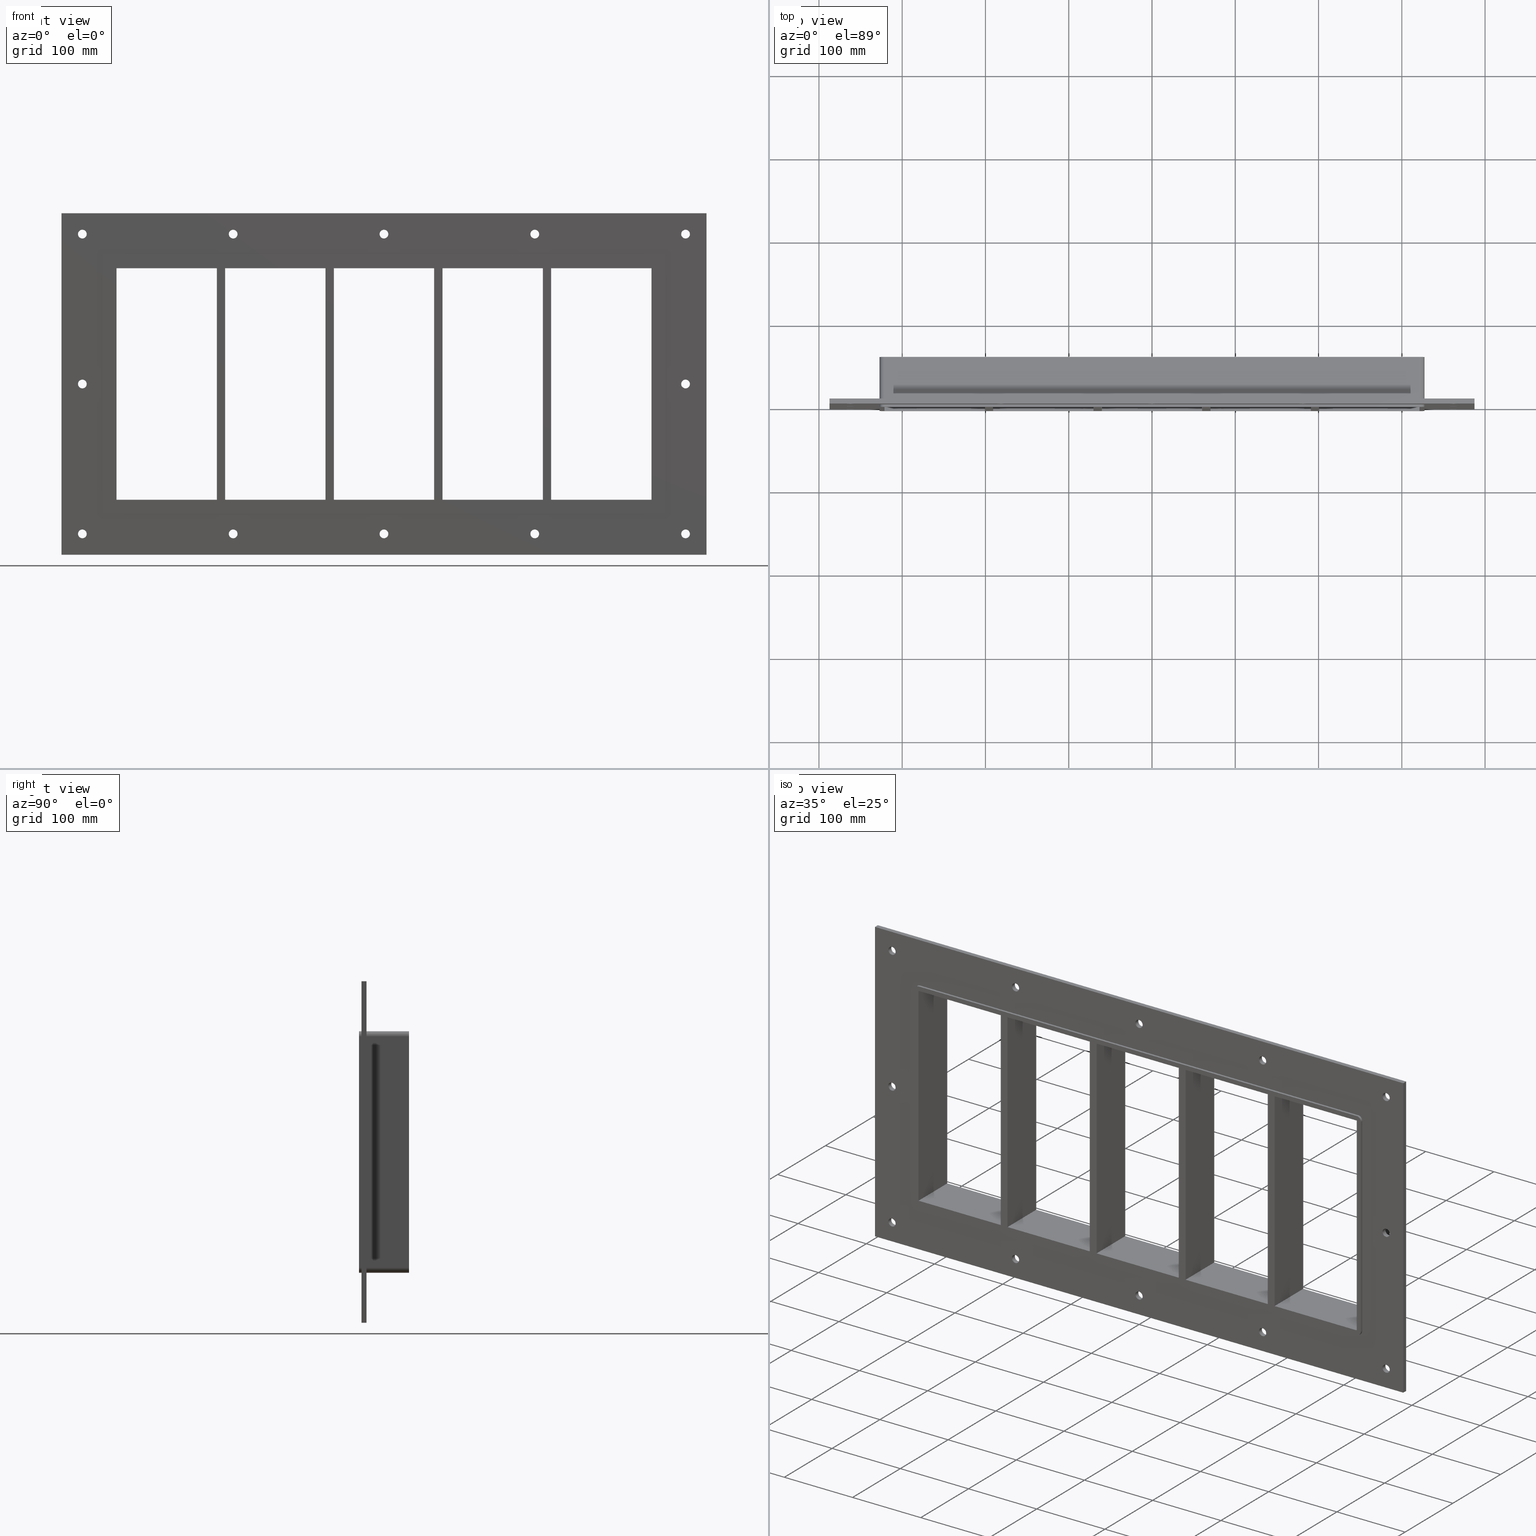
[diagram: canonical four-view strip — front | top / right | iso, engineering-drawing reading convention]
A machine part, canonical four-view strip (front | top / right | iso — engineering-drawing reading convention). The complete STEP part file that produces these views, byte-faithful:
ISO-10303-21;
HEADER;
/****************************************************************
 * Generated by software with PDElib inside                    *
 * PDElib Version v51a, created Wed 11/30/2011                  *
 * ITI Transcendata (http://www.transcendata.com/)              *
 ****************************************************************/
FILE_DESCRIPTION((''),'2;1');
FILE_NAME('L:\\roxtec-se\\Projects\\Ongoing_Projects\\12403 Transit Designer\\Product-data\\Product Data\\Transit designer Cad Generator\\CreatedFiles\\STEP\\GH8X5.stp','2015-01-13T14:16:52',(''),(''),'Autodesk Inventor 2013','Autodesk Inventor 2013','');
FILE_SCHEMA(('AUTOMOTIVE_DESIGN { 1 0 10303 214 1 1 1 1 }'));
ENDSEC;
DATA;
#5=APPLICATION_CONTEXT('automotive design');
#6=APPLICATION_PROTOCOL_DEFINITION('International Standard','automotive_design',2001,#5);
#7=PRODUCT_CONTEXT('',#5,'mechanical');
#8=PRODUCT('GH-ISO','GH-ISO',$,(#7));
#9=PRODUCT_RELATED_PRODUCT_CATEGORY('part',$,(#8));
#10=PRODUCT_DEFINITION_FORMATION('',$,#8);
#11=PRODUCT_DEFINITION_CONTEXT('part definition',#5,'design');
#12=PRODUCT_DEFINITION('',$,#10,#11);
#18=(NAMED_UNIT(*)PLANE_ANGLE_UNIT()SI_UNIT($,.RADIAN.));
#19=DIMENSIONAL_EXPONENTS(0.0,0.0,0.0,0.0,0.0,0.0,0.0);
#20=PLANE_ANGLE_MEASURE_WITH_UNIT(PLANE_ANGLE_MEASURE(0.0174532925),#18);
#24=(CONVERSION_BASED_UNIT('DEGREE',#20)NAMED_UNIT(#19)PLANE_ANGLE_UNIT());
#28=(NAMED_UNIT(*)SI_UNIT($,.STERADIAN.)SOLID_ANGLE_UNIT());
#32=(LENGTH_UNIT()NAMED_UNIT(*)SI_UNIT(.MILLI.,.METRE.));
#34=UNCERTAINTY_MEASURE_WITH_UNIT(LENGTH_MEASURE(0.01),#32,'DISTANCE_ACCURACY_VALUE','');
#36=(GEOMETRIC_REPRESENTATION_CONTEXT(3)GLOBAL_UNCERTAINTY_ASSIGNED_CONTEXT((#34))GLOBAL_UNIT_ASSIGNED_CONTEXT((#24,#28,#32))REPRESENTATION_CONTEXT('None','None'));
#37=AXIS2_PLACEMENT_3D('',#38,#39,#40);
#38=CARTESIAN_POINT('',(0.0,0.0,0.0));
#39=DIRECTION('',(0.0,0.0,1.0));
#40=DIRECTION('',(1.0,0.0,0.0));
#41=SHAPE_REPRESENTATION('',(#37),#36);
#42=PRODUCT_DEFINITION_SHAPE('','',#12);
#43=SHAPE_DEFINITION_REPRESENTATION(#42,#41);
#49=(NAMED_UNIT(*)PLANE_ANGLE_UNIT()SI_UNIT($,.RADIAN.));
#50=DIMENSIONAL_EXPONENTS(0.0,0.0,0.0,0.0,0.0,0.0,0.0);
#51=PLANE_ANGLE_MEASURE_WITH_UNIT(PLANE_ANGLE_MEASURE(0.0174532925),#49);
#55=(CONVERSION_BASED_UNIT('DEGREE',#51)NAMED_UNIT(#50)PLANE_ANGLE_UNIT());
#59=(NAMED_UNIT(*)SI_UNIT($,.STERADIAN.)SOLID_ANGLE_UNIT());
#63=(LENGTH_UNIT()NAMED_UNIT(*)SI_UNIT(.MILLI.,.METRE.));
#65=UNCERTAINTY_MEASURE_WITH_UNIT(LENGTH_MEASURE(0.000001),#63,'DISTANCE_ACCURACY_VALUE','');
#67=(GEOMETRIC_REPRESENTATION_CONTEXT(3)GLOBAL_UNCERTAINTY_ASSIGNED_CONTEXT((#65))GLOBAL_UNIT_ASSIGNED_CONTEXT((#55,#59,#63))REPRESENTATION_CONTEXT('','3D'));
#68=CARTESIAN_POINT('',(-362.25000000000011,878.37933149636444,-180.00000000000003));
#69=DIRECTION('',(0.0,-1.0,0.0));
#70=DIRECTION('',(1.0,0.0,0.0));
#71=AXIS2_PLACEMENT_3D('',#68,#69,#70);
#72=CYLINDRICAL_SURFACE('',#71,5.25);
#73=CARTESIAN_POINT('',(-367.50000000000006,5.999999999999943,-180.00000000000003));
#74=VERTEX_POINT('',#73);
#75=CARTESIAN_POINT('',(-362.25000000000011,5.999999999999943,-180.00000000000003));
#76=DIRECTION('',(0.0,-1.0,0.0));
#77=DIRECTION('',(1.0,0.0,0.0));
#78=AXIS2_PLACEMENT_3D('',#75,#76,#77);
#79=CIRCLE('',#78,5.25);
#80=EDGE_CURVE('',#74,#74,#79,.T.);
#81=ORIENTED_EDGE('',*,*,#80,.F.);
#82=EDGE_LOOP('',(#81));
#83=FACE_OUTER_BOUND('',#82,.T.);
#84=CARTESIAN_POINT('',(-357.00000000000011,0.0,-180.00000000000003));
#85=VERTEX_POINT('',#84);
#86=CARTESIAN_POINT('',(-362.25000000000011,0.0,-180.00000000000003));
#87=DIRECTION('',(0.0,1.0,0.0));
#88=DIRECTION('',(1.0,0.0,0.0));
#89=AXIS2_PLACEMENT_3D('',#86,#87,#88);
#90=CIRCLE('',#89,5.25);
#91=EDGE_CURVE('',#85,#85,#90,.T.);
#92=ORIENTED_EDGE('',*,*,#91,.F.);
#93=EDGE_LOOP('',(#92));
#94=FACE_BOUND('',#93,.T.);
#95=ADVANCED_FACE('',(#83,#94),#72,.F.);
#96=CARTESIAN_POINT('',(362.14999999999986,878.37933149636444,-3.552714E-014));
#97=DIRECTION('',(0.0,-1.0,0.0));
#98=DIRECTION('',(1.0,0.0,0.0));
#99=AXIS2_PLACEMENT_3D('',#96,#97,#98);
#100=CYLINDRICAL_SURFACE('',#99,5.25);
#101=CARTESIAN_POINT('',(356.89999999999992,5.999999999999943,-3.552714E-014));
#102=VERTEX_POINT('',#101);
#103=CARTESIAN_POINT('',(362.14999999999986,5.999999999999943,-3.552714E-014));
#104=DIRECTION('',(0.0,-1.0,0.0));
#105=DIRECTION('',(1.0,0.0,0.0));
#106=AXIS2_PLACEMENT_3D('',#103,#104,#105);
#107=CIRCLE('',#106,5.25);
#108=EDGE_CURVE('',#102,#102,#107,.T.);
#109=ORIENTED_EDGE('',*,*,#108,.F.);
#110=EDGE_LOOP('',(#109));
#111=FACE_OUTER_BOUND('',#110,.T.);
#112=CARTESIAN_POINT('',(367.39999999999986,0.0,-3.552714E-014));
#113=VERTEX_POINT('',#112);
#114=CARTESIAN_POINT('',(362.14999999999986,0.0,-3.552714E-014));
#115=DIRECTION('',(0.0,1.0,0.0));
#116=DIRECTION('',(1.0,0.0,0.0));
#117=AXIS2_PLACEMENT_3D('',#114,#115,#116);
#118=CIRCLE('',#117,5.25);
#119=EDGE_CURVE('',#113,#113,#118,.T.);
#120=ORIENTED_EDGE('',*,*,#119,.F.);
#121=EDGE_LOOP('',(#120));
#122=FACE_BOUND('',#121,.T.);
#123=ADVANCED_FACE('',(#111,#122),#100,.F.);
#124=CARTESIAN_POINT('',(-362.25000000000011,878.37933149636444,-3.552714E-014));
#125=DIRECTION('',(0.0,-1.0,0.0));
#126=DIRECTION('',(1.0,0.0,0.0));
#127=AXIS2_PLACEMENT_3D('',#124,#125,#126);
#128=CYLINDRICAL_SURFACE('',#127,5.25);
#129=CARTESIAN_POINT('',(-367.50000000000006,5.999999999999943,-3.552714E-014));
#130=VERTEX_POINT('',#129);
#131=CARTESIAN_POINT('',(-362.25000000000011,5.999999999999943,-3.552714E-014));
#132=DIRECTION('',(0.0,-1.0,0.0));
#133=DIRECTION('',(1.0,0.0,0.0));
#134=AXIS2_PLACEMENT_3D('',#131,#132,#133);
#135=CIRCLE('',#134,5.25);
#136=EDGE_CURVE('',#130,#130,#135,.T.);
#137=ORIENTED_EDGE('',*,*,#136,.F.);
#138=EDGE_LOOP('',(#137));
#139=FACE_OUTER_BOUND('',#138,.T.);
#140=CARTESIAN_POINT('',(-357.00000000000011,0.0,-3.552714E-014));
#141=VERTEX_POINT('',#140);
#142=CARTESIAN_POINT('',(-362.25000000000011,0.0,-3.552714E-014));
#143=DIRECTION('',(0.0,1.0,0.0));
#144=DIRECTION('',(1.0,0.0,0.0));
#145=AXIS2_PLACEMENT_3D('',#142,#143,#144);
#146=CIRCLE('',#145,5.25);
#147=EDGE_CURVE('',#141,#141,#146,.T.);
#148=ORIENTED_EDGE('',*,*,#147,.F.);
#149=EDGE_LOOP('',(#148));
#150=FACE_BOUND('',#149,.T.);
#151=ADVANCED_FACE('',(#139,#150),#128,.F.);
#152=CARTESIAN_POINT('',(-181.15000000000009,878.37933149636444,179.99999999999997));
#153=DIRECTION('',(0.0,-1.0,0.0));
#154=DIRECTION('',(1.0,0.0,0.0));
#155=AXIS2_PLACEMENT_3D('',#152,#153,#154);
#156=CYLINDRICAL_SURFACE('',#155,5.25);
#157=CARTESIAN_POINT('',(-186.40000000000009,5.999999999999943,179.99999999999997));
#158=VERTEX_POINT('',#157);
#159=CARTESIAN_POINT('',(-181.15000000000009,5.999999999999943,179.99999999999997));
#160=DIRECTION('',(0.0,-1.0,0.0));
#161=DIRECTION('',(1.0,0.0,0.0));
#162=AXIS2_PLACEMENT_3D('',#159,#160,#161);
#163=CIRCLE('',#162,5.25);
#164=EDGE_CURVE('',#158,#158,#163,.T.);
#165=ORIENTED_EDGE('',*,*,#164,.F.);
#166=EDGE_LOOP('',(#165));
#167=FACE_OUTER_BOUND('',#166,.T.);
#168=CARTESIAN_POINT('',(-175.90000000000009,0.0,179.99999999999997));
#169=VERTEX_POINT('',#168);
#170=CARTESIAN_POINT('',(-181.15000000000009,0.0,179.99999999999997));
#171=DIRECTION('',(0.0,1.0,0.0));
#172=DIRECTION('',(1.0,0.0,0.0));
#173=AXIS2_PLACEMENT_3D('',#170,#171,#172);
#174=CIRCLE('',#173,5.25);
#175=EDGE_CURVE('',#169,#169,#174,.T.);
#176=ORIENTED_EDGE('',*,*,#175,.F.);
#177=EDGE_LOOP('',(#176));
#178=FACE_BOUND('',#177,.T.);
#179=ADVANCED_FACE('',(#167,#178),#156,.F.);
#180=CARTESIAN_POINT('',(-181.15000000000009,878.37933149636444,-180.00000000000003));
#181=DIRECTION('',(0.0,-1.0,0.0));
#182=DIRECTION('',(1.0,0.0,0.0));
#183=AXIS2_PLACEMENT_3D('',#180,#181,#182);
#184=CYLINDRICAL_SURFACE('',#183,5.25);
#185=CARTESIAN_POINT('',(-186.40000000000009,5.999999999999943,-180.00000000000003));
#186=VERTEX_POINT('',#185);
#187=CARTESIAN_POINT('',(-181.15000000000009,5.999999999999943,-180.00000000000003));
#188=DIRECTION('',(0.0,-1.0,0.0));
#189=DIRECTION('',(1.0,0.0,0.0));
#190=AXIS2_PLACEMENT_3D('',#187,#188,#189);
#191=CIRCLE('',#190,5.25);
#192=EDGE_CURVE('',#186,#186,#191,.T.);
#193=ORIENTED_EDGE('',*,*,#192,.F.);
#194=EDGE_LOOP('',(#193));
#195=FACE_OUTER_BOUND('',#194,.T.);
#196=CARTESIAN_POINT('',(-175.90000000000009,0.0,-180.00000000000003));
#197=VERTEX_POINT('',#196);
#198=CARTESIAN_POINT('',(-181.15000000000009,0.0,-180.00000000000003));
#199=DIRECTION('',(0.0,1.0,0.0));
#200=DIRECTION('',(1.0,0.0,0.0));
#201=AXIS2_PLACEMENT_3D('',#198,#199,#200);
#202=CIRCLE('',#201,5.25);
#203=EDGE_CURVE('',#197,#197,#202,.T.);
#204=ORIENTED_EDGE('',*,*,#203,.F.);
#205=EDGE_LOOP('',(#204));
#206=FACE_BOUND('',#205,.T.);
#207=ADVANCED_FACE('',(#195,#206),#184,.F.);
#208=CARTESIAN_POINT('',(-0.050000000000097,878.37933149636444,179.99999999999997));
#209=DIRECTION('',(0.0,-1.0,0.0));
#210=DIRECTION('',(1.0,0.0,0.0));
#211=AXIS2_PLACEMENT_3D('',#208,#209,#210);
#212=CYLINDRICAL_SURFACE('',#211,5.25);
#213=CARTESIAN_POINT('',(-5.300000000000082,5.999999999999943,179.99999999999997));
#214=VERTEX_POINT('',#213);
#215=CARTESIAN_POINT('',(-0.050000000000097,5.999999999999943,179.99999999999997));
#216=DIRECTION('',(0.0,-1.0,0.0));
#217=DIRECTION('',(1.0,0.0,0.0));
#218=AXIS2_PLACEMENT_3D('',#215,#216,#217);
#219=CIRCLE('',#218,5.25);
#220=EDGE_CURVE('',#214,#214,#219,.T.);
#221=ORIENTED_EDGE('',*,*,#220,.F.);
#222=EDGE_LOOP('',(#221));
#223=FACE_OUTER_BOUND('',#222,.T.);
#224=CARTESIAN_POINT('',(5.199999999999889,0.0,179.99999999999997));
#225=VERTEX_POINT('',#224);
#226=CARTESIAN_POINT('',(-0.050000000000097,0.0,179.99999999999997));
#227=DIRECTION('',(0.0,1.0,0.0));
#228=DIRECTION('',(1.0,0.0,0.0));
#229=AXIS2_PLACEMENT_3D('',#226,#227,#228);
#230=CIRCLE('',#229,5.25);
#231=EDGE_CURVE('',#225,#225,#230,.T.);
#232=ORIENTED_EDGE('',*,*,#231,.F.);
#233=EDGE_LOOP('',(#232));
#234=FACE_BOUND('',#233,.T.);
#235=ADVANCED_FACE('',(#223,#234),#212,.F.);
#236=CARTESIAN_POINT('',(-0.050000000000097,878.37933149636444,-180.00000000000003));
#237=DIRECTION('',(0.0,-1.0,0.0));
#238=DIRECTION('',(1.0,0.0,0.0));
#239=AXIS2_PLACEMENT_3D('',#236,#237,#238);
#240=CYLINDRICAL_SURFACE('',#239,5.25);
#241=CARTESIAN_POINT('',(-5.300000000000082,5.999999999999943,-180.00000000000003));
#242=VERTEX_POINT('',#241);
#243=CARTESIAN_POINT('',(-0.050000000000097,5.999999999999943,-180.00000000000003));
#244=DIRECTION('',(0.0,-1.0,0.0));
#245=DIRECTION('',(1.0,0.0,0.0));
#246=AXIS2_PLACEMENT_3D('',#243,#244,#245);
#247=CIRCLE('',#246,5.25);
#248=EDGE_CURVE('',#242,#242,#247,.T.);
#249=ORIENTED_EDGE('',*,*,#248,.F.);
#250=EDGE_LOOP('',(#249));
#251=FACE_OUTER_BOUND('',#250,.T.);
#252=CARTESIAN_POINT('',(5.199999999999889,0.0,-180.00000000000003));
#253=VERTEX_POINT('',#252);
#254=CARTESIAN_POINT('',(-0.050000000000097,0.0,-180.00000000000003));
#255=DIRECTION('',(0.0,1.0,0.0));
#256=DIRECTION('',(1.0,0.0,0.0));
#257=AXIS2_PLACEMENT_3D('',#254,#255,#256);
#258=CIRCLE('',#257,5.25);
#259=EDGE_CURVE('',#253,#253,#258,.T.);
#260=ORIENTED_EDGE('',*,*,#259,.F.);
#261=EDGE_LOOP('',(#260));
#262=FACE_BOUND('',#261,.T.);
#263=ADVANCED_FACE('',(#251,#262),#240,.F.);
#264=CARTESIAN_POINT('',(181.0499999999999,878.37933149636444,179.99999999999997));
#265=DIRECTION('',(0.0,-1.0,0.0));
#266=DIRECTION('',(1.0,0.0,0.0));
#267=AXIS2_PLACEMENT_3D('',#264,#265,#266);
#268=CYLINDRICAL_SURFACE('',#267,5.25);
#269=CARTESIAN_POINT('',(175.7999999999999,5.999999999999943,179.99999999999997));
#270=VERTEX_POINT('',#269);
#271=CARTESIAN_POINT('',(181.0499999999999,5.999999999999943,179.99999999999997));
#272=DIRECTION('',(0.0,-1.0,0.0));
#273=DIRECTION('',(1.0,0.0,0.0));
#274=AXIS2_PLACEMENT_3D('',#271,#272,#273);
#275=CIRCLE('',#274,5.25);
#276=EDGE_CURVE('',#270,#270,#275,.T.);
#277=ORIENTED_EDGE('',*,*,#276,.F.);
#278=EDGE_LOOP('',(#277));
#279=FACE_OUTER_BOUND('',#278,.T.);
#280=CARTESIAN_POINT('',(186.2999999999999,0.0,179.99999999999997));
#281=VERTEX_POINT('',#280);
#282=CARTESIAN_POINT('',(181.0499999999999,0.0,179.99999999999997));
#283=DIRECTION('',(0.0,1.0,0.0));
#284=DIRECTION('',(1.0,0.0,0.0));
#285=AXIS2_PLACEMENT_3D('',#282,#283,#284);
#286=CIRCLE('',#285,5.25);
#287=EDGE_CURVE('',#281,#281,#286,.T.);
#288=ORIENTED_EDGE('',*,*,#287,.F.);
#289=EDGE_LOOP('',(#288));
#290=FACE_BOUND('',#289,.T.);
#291=ADVANCED_FACE('',(#279,#290),#268,.F.);
#292=CARTESIAN_POINT('',(181.0499999999999,878.37933149636444,-180.00000000000003));
#293=DIRECTION('',(0.0,-1.0,0.0));
#294=DIRECTION('',(1.0,0.0,0.0));
#295=AXIS2_PLACEMENT_3D('',#292,#293,#294);
#296=CYLINDRICAL_SURFACE('',#295,5.25);
#297=CARTESIAN_POINT('',(175.7999999999999,5.999999999999943,-180.00000000000003));
#298=VERTEX_POINT('',#297);
#299=CARTESIAN_POINT('',(181.0499999999999,5.999999999999943,-180.00000000000003));
#300=DIRECTION('',(0.0,-1.0,0.0));
#301=DIRECTION('',(1.0,0.0,0.0));
#302=AXIS2_PLACEMENT_3D('',#299,#300,#301);
#303=CIRCLE('',#302,5.25);
#304=EDGE_CURVE('',#298,#298,#303,.T.);
#305=ORIENTED_EDGE('',*,*,#304,.F.);
#306=EDGE_LOOP('',(#305));
#307=FACE_OUTER_BOUND('',#306,.T.);
#308=CARTESIAN_POINT('',(186.2999999999999,0.0,-180.00000000000003));
#309=VERTEX_POINT('',#308);
#310=CARTESIAN_POINT('',(181.0499999999999,0.0,-180.00000000000003));
#311=DIRECTION('',(0.0,1.0,0.0));
#312=DIRECTION('',(1.0,0.0,0.0));
#313=AXIS2_PLACEMENT_3D('',#310,#311,#312);
#314=CIRCLE('',#313,5.25);
#315=EDGE_CURVE('',#309,#309,#314,.T.);
#316=ORIENTED_EDGE('',*,*,#315,.F.);
#317=EDGE_LOOP('',(#316));
#318=FACE_BOUND('',#317,.T.);
#319=ADVANCED_FACE('',(#307,#318),#296,.F.);
#320=CARTESIAN_POINT('',(362.14999999999986,878.37933149636444,-180.00000000000003));
#321=DIRECTION('',(0.0,-1.0,0.0));
#322=DIRECTION('',(1.0,0.0,0.0));
#323=AXIS2_PLACEMENT_3D('',#320,#321,#322);
#324=CYLINDRICAL_SURFACE('',#323,5.25);
#325=CARTESIAN_POINT('',(356.89999999999992,5.999999999999943,-180.00000000000003));
#326=VERTEX_POINT('',#325);
#327=CARTESIAN_POINT('',(362.14999999999986,5.999999999999943,-180.00000000000003));
#328=DIRECTION('',(0.0,-1.0,0.0));
#329=DIRECTION('',(1.0,0.0,0.0));
#330=AXIS2_PLACEMENT_3D('',#327,#328,#329);
#331=CIRCLE('',#330,5.25);
#332=EDGE_CURVE('',#326,#326,#331,.T.);
#333=ORIENTED_EDGE('',*,*,#332,.F.);
#334=EDGE_LOOP('',(#333));
#335=FACE_OUTER_BOUND('',#334,.T.);
#336=CARTESIAN_POINT('',(367.39999999999986,0.0,-180.00000000000003));
#337=VERTEX_POINT('',#336);
#338=CARTESIAN_POINT('',(362.14999999999986,0.0,-180.00000000000003));
#339=DIRECTION('',(0.0,1.0,0.0));
#340=DIRECTION('',(1.0,0.0,0.0));
#341=AXIS2_PLACEMENT_3D('',#338,#339,#340);
#342=CIRCLE('',#341,5.25);
#343=EDGE_CURVE('',#337,#337,#342,.T.);
#344=ORIENTED_EDGE('',*,*,#343,.F.);
#345=EDGE_LOOP('',(#344));
#346=FACE_BOUND('',#345,.T.);
#347=ADVANCED_FACE('',(#335,#346),#324,.F.);
#348=CARTESIAN_POINT('',(-362.25000000000011,878.37933149636444,179.99999999999997));
#349=DIRECTION('',(0.0,-1.0,0.0));
#350=DIRECTION('',(1.0,0.0,0.0));
#351=AXIS2_PLACEMENT_3D('',#348,#349,#350);
#352=CYLINDRICAL_SURFACE('',#351,5.25);
#353=CARTESIAN_POINT('',(-367.50000000000006,5.999999999999943,179.99999999999997));
#354=VERTEX_POINT('',#353);
#355=CARTESIAN_POINT('',(-362.25000000000011,5.999999999999943,179.99999999999997));
#356=DIRECTION('',(0.0,-1.0,0.0));
#357=DIRECTION('',(1.0,0.0,0.0));
#358=AXIS2_PLACEMENT_3D('',#355,#356,#357);
#359=CIRCLE('',#358,5.25);
#360=EDGE_CURVE('',#354,#354,#359,.T.);
#361=ORIENTED_EDGE('',*,*,#360,.F.);
#362=EDGE_LOOP('',(#361));
#363=FACE_OUTER_BOUND('',#362,.T.);
#364=CARTESIAN_POINT('',(-357.00000000000011,0.0,179.99999999999997));
#365=VERTEX_POINT('',#364);
#366=CARTESIAN_POINT('',(-362.25000000000011,0.0,179.99999999999997));
#367=DIRECTION('',(0.0,1.0,0.0));
#368=DIRECTION('',(1.0,0.0,0.0));
#369=AXIS2_PLACEMENT_3D('',#366,#367,#368);
#370=CIRCLE('',#369,5.25);
#371=EDGE_CURVE('',#365,#365,#370,.T.);
#372=ORIENTED_EDGE('',*,*,#371,.F.);
#373=EDGE_LOOP('',(#372));
#374=FACE_BOUND('',#373,.T.);
#375=ADVANCED_FACE('',(#363,#374),#352,.F.);
#376=CARTESIAN_POINT('',(362.14999999999986,878.37933149636444,179.99999999999997));
#377=DIRECTION('',(0.0,-1.0,0.0));
#378=DIRECTION('',(1.0,0.0,0.0));
#379=AXIS2_PLACEMENT_3D('',#376,#377,#378);
#380=CYLINDRICAL_SURFACE('',#379,5.25);
#381=CARTESIAN_POINT('',(356.89999999999992,5.999999999999943,179.99999999999997));
#382=VERTEX_POINT('',#381);
#383=CARTESIAN_POINT('',(362.14999999999986,5.999999999999943,179.99999999999997));
#384=DIRECTION('',(0.0,-1.0,0.0));
#385=DIRECTION('',(1.0,0.0,0.0));
#386=AXIS2_PLACEMENT_3D('',#383,#384,#385);
#387=CIRCLE('',#386,5.25);
#388=EDGE_CURVE('',#382,#382,#387,.T.);
#389=ORIENTED_EDGE('',*,*,#388,.F.);
#390=EDGE_LOOP('',(#389));
#391=FACE_OUTER_BOUND('',#390,.T.);
#392=CARTESIAN_POINT('',(367.39999999999986,0.0,179.99999999999997));
#393=VERTEX_POINT('',#392);
#394=CARTESIAN_POINT('',(362.14999999999986,0.0,179.99999999999997));
#395=DIRECTION('',(0.0,1.0,0.0));
#396=DIRECTION('',(1.0,0.0,0.0));
#397=AXIS2_PLACEMENT_3D('',#394,#395,#396);
#398=CIRCLE('',#397,5.25);
#399=EDGE_CURVE('',#393,#393,#398,.T.);
#400=ORIENTED_EDGE('',*,*,#399,.F.);
#401=EDGE_LOOP('',(#400));
#402=FACE_BOUND('',#401,.T.);
#403=ADVANCED_FACE('',(#391,#402),#380,.F.);
#404=CARTESIAN_POINT('',(190.74999999999795,-3.0,-139.00000000000003));
#405=DIRECTION('',(-1.0,0.0,0.0));
#406=DIRECTION('',(0.0,0.0,1.0));
#407=AXIS2_PLACEMENT_3D('',#404,#405,#406);
#408=PLANE('',#407);
#409=CARTESIAN_POINT('',(190.74999999999795,-3.0,-139.00000000000003));
#410=VERTEX_POINT('',#409);
#411=CARTESIAN_POINT('',(190.74999999999795,-3.0,139.00000000000003));
#412=VERTEX_POINT('',#411);
#413=CARTESIAN_POINT('',(190.74999999999795,-3.0,-139.00000000000003));
#414=DIRECTION('',(0.0,0.0,1.0));
#415=VECTOR('',#414,278.00000000000006);
#416=LINE('',#413,#415);
#417=EDGE_CURVE('',#410,#412,#416,.T.);
#418=ORIENTED_EDGE('',*,*,#417,.T.);
#419=CARTESIAN_POINT('',(190.74999999999795,57.0,139.00000000000003));
#420=VERTEX_POINT('',#419);
#421=CARTESIAN_POINT('',(190.74999999999795,57.000000000000007,139.00000000000003));
#422=DIRECTION('',(0.0,-1.0,0.0));
#423=VECTOR('',#422,60.000000000000007);
#424=LINE('',#421,#423);
#425=EDGE_CURVE('',#420,#412,#424,.T.);
#426=ORIENTED_EDGE('',*,*,#425,.F.);
#427=CARTESIAN_POINT('',(190.74999999999795,57.0,-139.00000000000003));
#428=VERTEX_POINT('',#427);
#429=CARTESIAN_POINT('',(190.74999999999795,57.0,-139.00000000000003));
#430=DIRECTION('',(0.0,0.0,1.0));
#431=VECTOR('',#430,278.00000000000006);
#432=LINE('',#429,#431);
#433=EDGE_CURVE('',#428,#420,#432,.T.);
#434=ORIENTED_EDGE('',*,*,#433,.F.);
#435=CARTESIAN_POINT('',(190.74999999999795,-3.0,-139.00000000000003));
#436=DIRECTION('',(0.0,1.0,0.0));
#437=VECTOR('',#436,60.000000000000007);
#438=LINE('',#435,#437);
#439=EDGE_CURVE('',#410,#428,#438,.T.);
#440=ORIENTED_EDGE('',*,*,#439,.F.);
#441=EDGE_LOOP('',(#418,#426,#434,#440));
#442=FACE_OUTER_BOUND('',#441,.T.);
#443=ADVANCED_FACE('',(#442),#408,.T.);
#444=CARTESIAN_POINT('',(200.74999999999278,-3.0,139.00000000000003));
#445=DIRECTION('',(1.0,0.0,0.0));
#446=DIRECTION('',(0.0,0.0,-1.0));
#447=AXIS2_PLACEMENT_3D('',#444,#445,#446);
#448=PLANE('',#447);
#449=CARTESIAN_POINT('',(200.74999999999278,-3.0,139.00000000000003));
#450=VERTEX_POINT('',#449);
#451=CARTESIAN_POINT('',(200.74999999999278,-3.0,-138.9999999999871));
#452=VERTEX_POINT('',#451);
#453=CARTESIAN_POINT('',(200.74999999999278,-3.0,139.00000000000003));
#454=DIRECTION('',(0.0,0.0,-1.0));
#455=VECTOR('',#454,277.9999999999871);
#456=LINE('',#453,#455);
#457=EDGE_CURVE('',#450,#452,#456,.T.);
#458=ORIENTED_EDGE('',*,*,#457,.T.);
#459=CARTESIAN_POINT('',(200.74999999999278,57.0,-138.9999999999871));
#460=VERTEX_POINT('',#459);
#461=CARTESIAN_POINT('',(200.74999999999278,57.000000000000007,-139.00000000000003));
#462=DIRECTION('',(0.0,-1.0,0.0));
#463=VECTOR('',#462,60.000000000000007);
#464=LINE('',#461,#463);
#465=EDGE_CURVE('',#460,#452,#464,.T.);
#466=ORIENTED_EDGE('',*,*,#465,.F.);
#467=CARTESIAN_POINT('',(200.74999999999278,57.0,139.00000000000003));
#468=VERTEX_POINT('',#467);
#469=CARTESIAN_POINT('',(200.74999999999278,57.0,139.00000000000003));
#470=DIRECTION('',(0.0,0.0,-1.0));
#471=VECTOR('',#470,277.9999999999871);
#472=LINE('',#469,#471);
#473=EDGE_CURVE('',#468,#460,#472,.T.);
#474=ORIENTED_EDGE('',*,*,#473,.F.);
#475=CARTESIAN_POINT('',(200.74999999999278,-3.0,139.00000000000003));
#476=DIRECTION('',(0.0,1.0,0.0));
#477=VECTOR('',#476,60.000000000000007);
#478=LINE('',#475,#477);
#479=EDGE_CURVE('',#450,#468,#478,.T.);
#480=ORIENTED_EDGE('',*,*,#479,.F.);
#481=EDGE_LOOP('',(#458,#466,#474,#480));
#482=FACE_OUTER_BOUND('',#481,.T.);
#483=ADVANCED_FACE('',(#482),#448,.T.);
#484=CARTESIAN_POINT('',(60.249999999997925,-3.0,-139.00000000000003));
#485=DIRECTION('',(-1.0,0.0,0.0));
#486=DIRECTION('',(0.0,0.0,1.0));
#487=AXIS2_PLACEMENT_3D('',#484,#485,#486);
#488=PLANE('',#487);
#489=CARTESIAN_POINT('',(60.249999999997925,-3.0,-139.00000000000003));
#490=VERTEX_POINT('',#489);
#491=CARTESIAN_POINT('',(60.249999999997925,-3.0,139.00000000000003));
#492=VERTEX_POINT('',#491);
#493=CARTESIAN_POINT('',(60.249999999997925,-3.0,-139.00000000000003));
#494=DIRECTION('',(0.0,0.0,1.0));
#495=VECTOR('',#494,278.00000000000006);
#496=LINE('',#493,#495);
#497=EDGE_CURVE('',#490,#492,#496,.T.);
#498=ORIENTED_EDGE('',*,*,#497,.T.);
#499=CARTESIAN_POINT('',(60.249999999997925,57.0,139.00000000000003));
#500=VERTEX_POINT('',#499);
#501=CARTESIAN_POINT('',(60.249999999997925,57.000000000000007,139.00000000000003));
#502=DIRECTION('',(0.0,-1.0,0.0));
#503=VECTOR('',#502,60.000000000000007);
#504=LINE('',#501,#503);
#505=EDGE_CURVE('',#500,#492,#504,.T.);
#506=ORIENTED_EDGE('',*,*,#505,.F.);
#507=CARTESIAN_POINT('',(60.249999999997925,57.0,-139.00000000000003));
#508=VERTEX_POINT('',#507);
#509=CARTESIAN_POINT('',(60.249999999997925,57.0,-139.00000000000003));
#510=DIRECTION('',(0.0,0.0,1.0));
#511=VECTOR('',#510,278.00000000000006);
#512=LINE('',#509,#511);
#513=EDGE_CURVE('',#508,#500,#512,.T.);
#514=ORIENTED_EDGE('',*,*,#513,.F.);
#515=CARTESIAN_POINT('',(60.249999999997925,-3.0,-139.00000000000003));
#516=DIRECTION('',(0.0,1.0,0.0));
#517=VECTOR('',#516,60.000000000000007);
#518=LINE('',#515,#517);
#519=EDGE_CURVE('',#490,#508,#518,.T.);
#520=ORIENTED_EDGE('',*,*,#519,.F.);
#521=EDGE_LOOP('',(#498,#506,#514,#520));
#522=FACE_OUTER_BOUND('',#521,.T.);
#523=ADVANCED_FACE('',(#522),#488,.T.);
#524=CARTESIAN_POINT('',(70.249999999992738,-3.0,139.00000000000003));
#525=DIRECTION('',(1.0,0.0,0.0));
#526=DIRECTION('',(0.0,0.0,-1.0));
#527=AXIS2_PLACEMENT_3D('',#524,#525,#526);
#528=PLANE('',#527);
#529=CARTESIAN_POINT('',(70.249999999992738,-3.0,139.00000000000003));
#530=VERTEX_POINT('',#529);
#531=CARTESIAN_POINT('',(70.249999999992738,-3.0,-138.9999999999871));
#532=VERTEX_POINT('',#531);
#533=CARTESIAN_POINT('',(70.249999999992738,-3.0,139.00000000000003));
#534=DIRECTION('',(0.0,0.0,-1.0));
#535=VECTOR('',#534,277.9999999999871);
#536=LINE('',#533,#535);
#537=EDGE_CURVE('',#530,#532,#536,.T.);
#538=ORIENTED_EDGE('',*,*,#537,.T.);
#539=CARTESIAN_POINT('',(70.249999999992738,57.0,-138.9999999999871));
#540=VERTEX_POINT('',#539);
#541=CARTESIAN_POINT('',(70.249999999992738,57.000000000000007,-139.00000000000003));
#542=DIRECTION('',(0.0,-1.0,0.0));
#543=VECTOR('',#542,60.000000000000007);
#544=LINE('',#541,#543);
#545=EDGE_CURVE('',#540,#532,#544,.T.);
#546=ORIENTED_EDGE('',*,*,#545,.F.);
#547=CARTESIAN_POINT('',(70.249999999992738,57.0,139.00000000000003));
#548=VERTEX_POINT('',#547);
#549=CARTESIAN_POINT('',(70.249999999992738,57.0,139.00000000000003));
#550=DIRECTION('',(0.0,0.0,-1.0));
#551=VECTOR('',#550,277.9999999999871);
#552=LINE('',#549,#551);
#553=EDGE_CURVE('',#548,#540,#552,.T.);
#554=ORIENTED_EDGE('',*,*,#553,.F.);
#555=CARTESIAN_POINT('',(70.249999999992738,-3.0,139.00000000000003));
#556=DIRECTION('',(0.0,1.0,0.0));
#557=VECTOR('',#556,60.000000000000007);
#558=LINE('',#555,#557);
#559=EDGE_CURVE('',#530,#548,#558,.T.);
#560=ORIENTED_EDGE('',*,*,#559,.F.);
#561=EDGE_LOOP('',(#538,#546,#554,#560));
#562=FACE_OUTER_BOUND('',#561,.T.);
#563=ADVANCED_FACE('',(#562),#528,.T.);
#564=CARTESIAN_POINT('',(-70.250000000002075,-3.0,-139.00000000000003));
#565=DIRECTION('',(-1.0,0.0,0.0));
#566=DIRECTION('',(0.0,0.0,1.0));
#567=AXIS2_PLACEMENT_3D('',#564,#565,#566);
#568=PLANE('',#567);
#569=CARTESIAN_POINT('',(-70.250000000002075,-3.0,-139.00000000000003));
#570=VERTEX_POINT('',#569);
#571=CARTESIAN_POINT('',(-70.250000000002075,-3.0,139.00000000000003));
#572=VERTEX_POINT('',#571);
#573=CARTESIAN_POINT('',(-70.250000000002075,-3.0,-139.00000000000003));
#574=DIRECTION('',(0.0,0.0,1.0));
#575=VECTOR('',#574,278.00000000000006);
#576=LINE('',#573,#575);
#577=EDGE_CURVE('',#570,#572,#576,.T.);
#578=ORIENTED_EDGE('',*,*,#577,.T.);
#579=CARTESIAN_POINT('',(-70.250000000002075,57.0,139.00000000000003));
#580=VERTEX_POINT('',#579);
#581=CARTESIAN_POINT('',(-70.250000000002103,57.000000000000007,139.00000000000003));
#582=DIRECTION('',(0.0,-1.0,0.0));
#583=VECTOR('',#582,60.000000000000007);
#584=LINE('',#581,#583);
#585=EDGE_CURVE('',#580,#572,#584,.T.);
#586=ORIENTED_EDGE('',*,*,#585,.F.);
#587=CARTESIAN_POINT('',(-70.250000000002075,57.0,-139.00000000000003));
#588=VERTEX_POINT('',#587);
#589=CARTESIAN_POINT('',(-70.250000000002075,57.0,-139.00000000000003));
#590=DIRECTION('',(0.0,0.0,1.0));
#591=VECTOR('',#590,278.00000000000006);
#592=LINE('',#589,#591);
#593=EDGE_CURVE('',#588,#580,#592,.T.);
#594=ORIENTED_EDGE('',*,*,#593,.F.);
#595=CARTESIAN_POINT('',(-70.250000000002061,-3.0,-139.00000000000003));
#596=DIRECTION('',(0.0,1.0,0.0));
#597=VECTOR('',#596,60.000000000000007);
#598=LINE('',#595,#597);
#599=EDGE_CURVE('',#570,#588,#598,.T.);
#600=ORIENTED_EDGE('',*,*,#599,.F.);
#601=EDGE_LOOP('',(#578,#586,#594,#600));
#602=FACE_OUTER_BOUND('',#601,.T.);
#603=ADVANCED_FACE('',(#602),#568,.T.);
#604=CARTESIAN_POINT('',(-60.250000000007269,-3.0,139.00000000000003));
#605=DIRECTION('',(1.0,0.0,0.0));
#606=DIRECTION('',(0.0,0.0,-1.0));
#607=AXIS2_PLACEMENT_3D('',#604,#605,#606);
#608=PLANE('',#607);
#609=CARTESIAN_POINT('',(-60.250000000007269,-3.0,139.00000000000003));
#610=VERTEX_POINT('',#609);
#611=CARTESIAN_POINT('',(-60.250000000007269,-3.0,-138.9999999999871));
#612=VERTEX_POINT('',#611);
#613=CARTESIAN_POINT('',(-60.250000000007269,-3.0,139.00000000000003));
#614=DIRECTION('',(0.0,0.0,-1.0));
#615=VECTOR('',#614,277.9999999999871);
#616=LINE('',#613,#615);
#617=EDGE_CURVE('',#610,#612,#616,.T.);
#618=ORIENTED_EDGE('',*,*,#617,.T.);
#619=CARTESIAN_POINT('',(-60.250000000007269,57.0,-138.9999999999871));
#620=VERTEX_POINT('',#619);
#621=CARTESIAN_POINT('',(-60.25000000000729,57.000000000000007,-139.00000000000003));
#622=DIRECTION('',(0.0,-1.0,0.0));
#623=VECTOR('',#622,60.000000000000007);
#624=LINE('',#621,#623);
#625=EDGE_CURVE('',#620,#612,#624,.T.);
#626=ORIENTED_EDGE('',*,*,#625,.F.);
#627=CARTESIAN_POINT('',(-60.250000000007269,57.0,139.00000000000003));
#628=VERTEX_POINT('',#627);
#629=CARTESIAN_POINT('',(-60.250000000007269,57.0,139.00000000000003));
#630=DIRECTION('',(0.0,0.0,-1.0));
#631=VECTOR('',#630,277.9999999999871);
#632=LINE('',#629,#631);
#633=EDGE_CURVE('',#628,#620,#632,.T.);
#634=ORIENTED_EDGE('',*,*,#633,.F.);
#635=CARTESIAN_POINT('',(-60.250000000007248,-3.0,139.00000000000003));
#636=DIRECTION('',(0.0,1.0,0.0));
#637=VECTOR('',#636,60.000000000000007);
#638=LINE('',#635,#637);
#639=EDGE_CURVE('',#610,#628,#638,.T.);
#640=ORIENTED_EDGE('',*,*,#639,.F.);
#641=EDGE_LOOP('',(#618,#626,#634,#640));
#642=FACE_OUTER_BOUND('',#641,.T.);
#643=ADVANCED_FACE('',(#642),#608,.T.);
#644=CARTESIAN_POINT('',(321.25,0.0,-139.00000000000003));
#645=DIRECTION('',(0.0,0.0,-1.0));
#646=DIRECTION('',(-1.0,0.0,0.0));
#647=AXIS2_PLACEMENT_3D('',#644,#645,#646);
#648=PLANE('',#647);
#649=ORIENTED_EDGE('',*,*,#599,.T.);
#650=CARTESIAN_POINT('',(-190.75000000000728,57.0,-138.9999999999871));
#651=VERTEX_POINT('',#650);
#652=CARTESIAN_POINT('',(-190.75000000000728,57.0,-139.00000000000003));
#653=DIRECTION('',(1.0,0.0,0.0));
#654=VECTOR('',#653,120.5000000000052);
#655=LINE('',#652,#654);
#656=EDGE_CURVE('',#651,#588,#655,.T.);
#657=ORIENTED_EDGE('',*,*,#656,.F.);
#658=CARTESIAN_POINT('',(-190.75000000000728,-3.0,-138.9999999999871));
#659=VERTEX_POINT('',#658);
#660=CARTESIAN_POINT('',(-190.75000000000728,57.000000000000007,-139.00000000000003));
#661=DIRECTION('',(0.0,-1.0,0.0));
#662=VECTOR('',#661,60.000000000000007);
#663=LINE('',#660,#662);
#664=EDGE_CURVE('',#651,#659,#663,.T.);
#665=ORIENTED_EDGE('',*,*,#664,.T.);
#666=CARTESIAN_POINT('',(-70.250000000002075,-3.0,-139.00000000000003));
#667=DIRECTION('',(-1.0,0.0,0.0));
#668=VECTOR('',#667,120.5000000000052);
#669=LINE('',#666,#668);
#670=EDGE_CURVE('',#570,#659,#669,.T.);
#671=ORIENTED_EDGE('',*,*,#670,.F.);
#672=EDGE_LOOP('',(#649,#657,#665,#671));
#673=FACE_OUTER_BOUND('',#672,.T.);
#674=ADVANCED_FACE('',(#673),#648,.F.);
#675=CARTESIAN_POINT('',(321.25,0.0,-139.00000000000003));
#676=DIRECTION('',(0.0,0.0,-1.0));
#677=DIRECTION('',(-1.0,0.0,0.0));
#678=AXIS2_PLACEMENT_3D('',#675,#676,#677);
#679=PLANE('',#678);
#680=ORIENTED_EDGE('',*,*,#519,.T.);
#681=CARTESIAN_POINT('',(-60.250000000007276,57.0,-139.00000000000003));
#682=DIRECTION('',(1.0,0.0,0.0));
#683=VECTOR('',#682,120.5000000000052);
#684=LINE('',#681,#683);
#685=EDGE_CURVE('',#620,#508,#684,.T.);
#686=ORIENTED_EDGE('',*,*,#685,.F.);
#687=ORIENTED_EDGE('',*,*,#625,.T.);
#688=CARTESIAN_POINT('',(60.249999999997925,-3.0,-139.00000000000003));
#689=DIRECTION('',(-1.0,0.0,0.0));
#690=VECTOR('',#689,120.5000000000052);
#691=LINE('',#688,#690);
#692=EDGE_CURVE('',#490,#612,#691,.T.);
#693=ORIENTED_EDGE('',*,*,#692,.F.);
#694=EDGE_LOOP('',(#680,#686,#687,#693));
#695=FACE_OUTER_BOUND('',#694,.T.);
#696=ADVANCED_FACE('',(#695),#679,.F.);
#697=CARTESIAN_POINT('',(321.25,0.0,-139.00000000000003));
#698=DIRECTION('',(0.0,0.0,-1.0));
#699=DIRECTION('',(-1.0,0.0,0.0));
#700=AXIS2_PLACEMENT_3D('',#697,#698,#699);
#701=PLANE('',#700);
#702=ORIENTED_EDGE('',*,*,#439,.T.);
#703=CARTESIAN_POINT('',(70.249999999992738,57.0,-139.00000000000003));
#704=DIRECTION('',(1.0,0.0,0.0));
#705=VECTOR('',#704,120.50000000000522);
#706=LINE('',#703,#705);
#707=EDGE_CURVE('',#540,#428,#706,.T.);
#708=ORIENTED_EDGE('',*,*,#707,.F.);
#709=ORIENTED_EDGE('',*,*,#545,.T.);
#710=CARTESIAN_POINT('',(190.74999999999795,-3.0,-139.00000000000003));
#711=DIRECTION('',(-1.0,0.0,0.0));
#712=VECTOR('',#711,120.50000000000522);
#713=LINE('',#710,#712);
#714=EDGE_CURVE('',#410,#532,#713,.T.);
#715=ORIENTED_EDGE('',*,*,#714,.F.);
#716=EDGE_LOOP('',(#702,#708,#709,#715));
#717=FACE_OUTER_BOUND('',#716,.T.);
#718=ADVANCED_FACE('',(#717),#701,.F.);
#719=CARTESIAN_POINT('',(321.25,0.0,-139.00000000000003));
#720=DIRECTION('',(0.0,0.0,-1.0));
#721=DIRECTION('',(-1.0,0.0,0.0));
#722=AXIS2_PLACEMENT_3D('',#719,#720,#721);
#723=PLANE('',#722);
#724=ORIENTED_EDGE('',*,*,#465,.T.);
#725=CARTESIAN_POINT('',(321.25,-3.0,-139.00000000000003));
#726=VERTEX_POINT('',#725);
#727=CARTESIAN_POINT('',(321.25,-3.0,-139.00000000000003));
#728=DIRECTION('',(-1.0,0.0,0.0));
#729=VECTOR('',#728,120.50000000000722);
#730=LINE('',#727,#729);
#731=EDGE_CURVE('',#726,#452,#730,.T.);
#732=ORIENTED_EDGE('',*,*,#731,.F.);
#733=CARTESIAN_POINT('',(321.25,57.0,-139.00000000000003));
#734=VERTEX_POINT('',#733);
#735=CARTESIAN_POINT('',(321.25,56.999999999999993,-139.00000000000003));
#736=DIRECTION('',(0.0,-1.0,0.0));
#737=VECTOR('',#736,59.999999999999993);
#738=LINE('',#735,#737);
#739=EDGE_CURVE('',#734,#726,#738,.T.);
#740=ORIENTED_EDGE('',*,*,#739,.F.);
#741=CARTESIAN_POINT('',(200.74999999999278,57.0,-139.00000000000003));
#742=DIRECTION('',(1.0,0.0,0.0));
#743=VECTOR('',#742,120.50000000000722);
#744=LINE('',#741,#743);
#745=EDGE_CURVE('',#460,#734,#744,.T.);
#746=ORIENTED_EDGE('',*,*,#745,.F.);
#747=EDGE_LOOP('',(#724,#732,#740,#746));
#748=FACE_OUTER_BOUND('',#747,.T.);
#749=ADVANCED_FACE('',(#748),#723,.F.);
#750=CARTESIAN_POINT('',(-321.25000000000006,0.0,139.00000000000003));
#751=DIRECTION('',(0.0,0.0,1.0));
#752=DIRECTION('',(1.0,0.0,0.0));
#753=AXIS2_PLACEMENT_3D('',#750,#751,#752);
#754=PLANE('',#753);
#755=ORIENTED_EDGE('',*,*,#585,.T.);
#756=CARTESIAN_POINT('',(-190.75000000000728,-3.0,139.00000000000003));
#757=VERTEX_POINT('',#756);
#758=CARTESIAN_POINT('',(-190.75000000000728,-3.0,139.00000000000003));
#759=DIRECTION('',(1.0,0.0,0.0));
#760=VECTOR('',#759,120.5000000000052);
#761=LINE('',#758,#760);
#762=EDGE_CURVE('',#757,#572,#761,.T.);
#763=ORIENTED_EDGE('',*,*,#762,.F.);
#764=CARTESIAN_POINT('',(-190.75000000000728,57.0,139.00000000000003));
#765=VERTEX_POINT('',#764);
#766=CARTESIAN_POINT('',(-190.75000000000728,-3.0,139.00000000000003));
#767=DIRECTION('',(0.0,1.0,0.0));
#768=VECTOR('',#767,60.000000000000007);
#769=LINE('',#766,#768);
#770=EDGE_CURVE('',#757,#765,#769,.T.);
#771=ORIENTED_EDGE('',*,*,#770,.T.);
#772=CARTESIAN_POINT('',(-70.250000000002075,57.0,139.00000000000003));
#773=DIRECTION('',(-1.0,0.0,0.0));
#774=VECTOR('',#773,120.5000000000052);
#775=LINE('',#772,#774);
#776=EDGE_CURVE('',#580,#765,#775,.T.);
#777=ORIENTED_EDGE('',*,*,#776,.F.);
#778=EDGE_LOOP('',(#755,#763,#771,#777));
#779=FACE_OUTER_BOUND('',#778,.T.);
#780=ADVANCED_FACE('',(#779),#754,.F.);
#781=CARTESIAN_POINT('',(-321.25000000000006,0.0,139.00000000000003));
#782=DIRECTION('',(0.0,0.0,1.0));
#783=DIRECTION('',(1.0,0.0,0.0));
#784=AXIS2_PLACEMENT_3D('',#781,#782,#783);
#785=PLANE('',#784);
#786=ORIENTED_EDGE('',*,*,#505,.T.);
#787=CARTESIAN_POINT('',(-60.250000000007262,-3.0,139.00000000000003));
#788=DIRECTION('',(1.0,0.0,0.0));
#789=VECTOR('',#788,120.50000000000519);
#790=LINE('',#787,#789);
#791=EDGE_CURVE('',#610,#492,#790,.T.);
#792=ORIENTED_EDGE('',*,*,#791,.F.);
#793=ORIENTED_EDGE('',*,*,#639,.T.);
#794=CARTESIAN_POINT('',(60.249999999997925,57.0,139.00000000000003));
#795=DIRECTION('',(-1.0,0.0,0.0));
#796=VECTOR('',#795,120.50000000000519);
#797=LINE('',#794,#796);
#798=EDGE_CURVE('',#500,#628,#797,.T.);
#799=ORIENTED_EDGE('',*,*,#798,.F.);
#800=EDGE_LOOP('',(#786,#792,#793,#799));
#801=FACE_OUTER_BOUND('',#800,.T.);
#802=ADVANCED_FACE('',(#801),#785,.F.);
#803=CARTESIAN_POINT('',(-321.25000000000006,0.0,139.00000000000003));
#804=DIRECTION('',(0.0,0.0,1.0));
#805=DIRECTION('',(1.0,0.0,0.0));
#806=AXIS2_PLACEMENT_3D('',#803,#804,#805);
#807=PLANE('',#806);
#808=ORIENTED_EDGE('',*,*,#479,.T.);
#809=CARTESIAN_POINT('',(321.25,57.0,139.00000000000003));
#810=VERTEX_POINT('',#809);
#811=CARTESIAN_POINT('',(321.25,57.0,139.00000000000003));
#812=DIRECTION('',(-1.0,0.0,0.0));
#813=VECTOR('',#812,120.50000000000725);
#814=LINE('',#811,#813);
#815=EDGE_CURVE('',#810,#468,#814,.T.);
#816=ORIENTED_EDGE('',*,*,#815,.F.);
#817=CARTESIAN_POINT('',(321.25,-3.0,139.00000000000003));
#818=VERTEX_POINT('',#817);
#819=CARTESIAN_POINT('',(321.25,-3.0,139.00000000000003));
#820=DIRECTION('',(0.0,1.0,0.0));
#821=VECTOR('',#820,60.0);
#822=LINE('',#819,#821);
#823=EDGE_CURVE('',#818,#810,#822,.T.);
#824=ORIENTED_EDGE('',*,*,#823,.F.);
#825=CARTESIAN_POINT('',(200.74999999999275,-3.0,139.00000000000003));
#826=DIRECTION('',(1.0,0.0,0.0));
#827=VECTOR('',#826,120.50000000000725);
#828=LINE('',#825,#827);
#829=EDGE_CURVE('',#450,#818,#828,.T.);
#830=ORIENTED_EDGE('',*,*,#829,.F.);
#831=EDGE_LOOP('',(#808,#816,#824,#830));
#832=FACE_OUTER_BOUND('',#831,.T.);
#833=ADVANCED_FACE('',(#832),#807,.F.);
#834=CARTESIAN_POINT('',(-321.25000000000006,0.0,139.00000000000003));
#835=DIRECTION('',(0.0,0.0,1.0));
#836=DIRECTION('',(1.0,0.0,0.0));
#837=AXIS2_PLACEMENT_3D('',#834,#835,#836);
#838=PLANE('',#837);
#839=ORIENTED_EDGE('',*,*,#425,.T.);
#840=CARTESIAN_POINT('',(70.249999999992752,-3.0,139.00000000000003));
#841=DIRECTION('',(1.0,0.0,0.0));
#842=VECTOR('',#841,120.50000000000529);
#843=LINE('',#840,#842);
#844=EDGE_CURVE('',#530,#412,#843,.T.);
#845=ORIENTED_EDGE('',*,*,#844,.F.);
#846=ORIENTED_EDGE('',*,*,#559,.T.);
#847=CARTESIAN_POINT('',(190.74999999999804,57.0,139.00000000000003));
#848=DIRECTION('',(-1.0,0.0,0.0));
#849=VECTOR('',#848,120.50000000000529);
#850=LINE('',#847,#849);
#851=EDGE_CURVE('',#420,#548,#850,.T.);
#852=ORIENTED_EDGE('',*,*,#851,.F.);
#853=EDGE_LOOP('',(#839,#845,#846,#852));
#854=FACE_OUTER_BOUND('',#853,.T.);
#855=ADVANCED_FACE('',(#854),#838,.F.);
#856=CARTESIAN_POINT('',(-200.7500000000021,-3.0,-139.00000000000003));
#857=DIRECTION('',(-1.0,0.0,0.0));
#858=DIRECTION('',(0.0,0.0,1.0));
#859=AXIS2_PLACEMENT_3D('',#856,#857,#858);
#860=PLANE('',#859);
#861=CARTESIAN_POINT('',(-200.7500000000021,-3.0,-139.00000000000003));
#862=VERTEX_POINT('',#861);
#863=CARTESIAN_POINT('',(-200.7500000000021,-3.0,139.00000000000003));
#864=VERTEX_POINT('',#863);
#865=CARTESIAN_POINT('',(-200.7500000000021,-3.0,-139.00000000000003));
#866=DIRECTION('',(0.0,0.0,1.0));
#867=VECTOR('',#866,278.00000000000006);
#868=LINE('',#865,#867);
#869=EDGE_CURVE('',#862,#864,#868,.T.);
#870=ORIENTED_EDGE('',*,*,#869,.T.);
#871=CARTESIAN_POINT('',(-200.7500000000021,57.0,139.00000000000003));
#872=VERTEX_POINT('',#871);
#873=CARTESIAN_POINT('',(-200.7500000000021,57.000000000000007,139.00000000000003));
#874=DIRECTION('',(0.0,-1.0,0.0));
#875=VECTOR('',#874,60.000000000000007);
#876=LINE('',#873,#875);
#877=EDGE_CURVE('',#872,#864,#876,.T.);
#878=ORIENTED_EDGE('',*,*,#877,.F.);
#879=CARTESIAN_POINT('',(-200.7500000000021,57.0,-139.00000000000003));
#880=VERTEX_POINT('',#879);
#881=CARTESIAN_POINT('',(-200.7500000000021,57.0,-139.00000000000003));
#882=DIRECTION('',(0.0,0.0,1.0));
#883=VECTOR('',#882,278.00000000000006);
#884=LINE('',#881,#883);
#885=EDGE_CURVE('',#880,#872,#884,.T.);
#886=ORIENTED_EDGE('',*,*,#885,.F.);
#887=CARTESIAN_POINT('',(-200.7500000000021,-3.0,-139.00000000000003));
#888=DIRECTION('',(0.0,1.0,0.0));
#889=VECTOR('',#888,60.000000000000007);
#890=LINE('',#887,#889);
#891=EDGE_CURVE('',#862,#880,#890,.T.);
#892=ORIENTED_EDGE('',*,*,#891,.F.);
#893=EDGE_LOOP('',(#870,#878,#886,#892));
#894=FACE_OUTER_BOUND('',#893,.T.);
#895=ADVANCED_FACE('',(#894),#860,.T.);
#896=CARTESIAN_POINT('',(-190.75000000000728,-3.0,139.00000000000003));
#897=DIRECTION('',(1.0,0.0,0.0));
#898=DIRECTION('',(0.0,0.0,-1.0));
#899=AXIS2_PLACEMENT_3D('',#896,#897,#898);
#900=PLANE('',#899);
#901=CARTESIAN_POINT('',(-190.75000000000728,-3.0,139.00000000000003));
#902=DIRECTION('',(0.0,0.0,-1.0));
#903=VECTOR('',#902,277.9999999999871);
#904=LINE('',#901,#903);
#905=EDGE_CURVE('',#757,#659,#904,.T.);
#906=ORIENTED_EDGE('',*,*,#905,.T.);
#907=ORIENTED_EDGE('',*,*,#664,.F.);
#908=CARTESIAN_POINT('',(-190.75000000000728,57.0,139.00000000000003));
#909=DIRECTION('',(0.0,0.0,-1.0));
#910=VECTOR('',#909,277.9999999999871);
#911=LINE('',#908,#910);
#912=EDGE_CURVE('',#765,#651,#911,.T.);
#913=ORIENTED_EDGE('',*,*,#912,.F.);
#914=ORIENTED_EDGE('',*,*,#770,.F.);
#915=EDGE_LOOP('',(#906,#907,#913,#914));
#916=FACE_OUTER_BOUND('',#915,.T.);
#917=ADVANCED_FACE('',(#916),#900,.T.);
#918=CARTESIAN_POINT('',(321.25,0.0,-139.00000000000003));
#919=DIRECTION('',(0.0,0.0,-1.0));
#920=DIRECTION('',(-1.0,0.0,0.0));
#921=AXIS2_PLACEMENT_3D('',#918,#919,#920);
#922=PLANE('',#921);
#923=ORIENTED_EDGE('',*,*,#891,.T.);
#924=CARTESIAN_POINT('',(-321.25,57.0,-139.00000000000003));
#925=VERTEX_POINT('',#924);
#926=CARTESIAN_POINT('',(-321.25,57.0,-139.00000000000003));
#927=DIRECTION('',(1.0,0.0,0.0));
#928=VECTOR('',#927,120.4999999999979);
#929=LINE('',#926,#928);
#930=EDGE_CURVE('',#925,#880,#929,.T.);
#931=ORIENTED_EDGE('',*,*,#930,.F.);
#932=CARTESIAN_POINT('',(-321.25,-3.0,-139.00000000000003));
#933=VERTEX_POINT('',#932);
#934=CARTESIAN_POINT('',(-321.25000000000006,-3.0,-139.00000000000003));
#935=DIRECTION('',(0.0,1.0,0.0));
#936=VECTOR('',#935,60.0);
#937=LINE('',#934,#936);
#938=EDGE_CURVE('',#933,#925,#937,.T.);
#939=ORIENTED_EDGE('',*,*,#938,.F.);
#940=CARTESIAN_POINT('',(-200.7500000000021,-3.0,-139.00000000000003));
#941=DIRECTION('',(-1.0,0.0,0.0));
#942=VECTOR('',#941,120.4999999999979);
#943=LINE('',#940,#942);
#944=EDGE_CURVE('',#862,#933,#943,.T.);
#945=ORIENTED_EDGE('',*,*,#944,.F.);
#946=EDGE_LOOP('',(#923,#931,#939,#945));
#947=FACE_OUTER_BOUND('',#946,.T.);
#948=ADVANCED_FACE('',(#947),#922,.F.);
#949=CARTESIAN_POINT('',(-321.25000000000006,0.0,139.00000000000003));
#950=DIRECTION('',(0.0,0.0,1.0));
#951=DIRECTION('',(1.0,0.0,0.0));
#952=AXIS2_PLACEMENT_3D('',#949,#950,#951);
#953=PLANE('',#952);
#954=ORIENTED_EDGE('',*,*,#877,.T.);
#955=CARTESIAN_POINT('',(-321.25,-3.0,139.00000000000003));
#956=VERTEX_POINT('',#955);
#957=CARTESIAN_POINT('',(-321.25,-3.0,139.00000000000003));
#958=DIRECTION('',(1.0,0.0,0.0));
#959=VECTOR('',#958,120.49999999999793);
#960=LINE('',#957,#959);
#961=EDGE_CURVE('',#956,#864,#960,.T.);
#962=ORIENTED_EDGE('',*,*,#961,.F.);
#963=CARTESIAN_POINT('',(-321.25,57.0,139.00000000000003));
#964=VERTEX_POINT('',#963);
#965=CARTESIAN_POINT('',(-321.25000000000006,-3.0,139.00000000000003));
#966=DIRECTION('',(0.0,1.0,0.0));
#967=VECTOR('',#966,60.0);
#968=LINE('',#965,#967);
#969=EDGE_CURVE('',#956,#964,#968,.T.);
#970=ORIENTED_EDGE('',*,*,#969,.T.);
#971=CARTESIAN_POINT('',(-200.75000000000207,57.0,139.00000000000003));
#972=DIRECTION('',(-1.0,0.0,0.0));
#973=VECTOR('',#972,120.49999999999793);
#974=LINE('',#971,#973);
#975=EDGE_CURVE('',#872,#964,#974,.T.);
#976=ORIENTED_EDGE('',*,*,#975,.F.);
#977=EDGE_LOOP('',(#954,#962,#970,#976));
#978=FACE_OUTER_BOUND('',#977,.T.);
#979=ADVANCED_FACE('',(#978),#953,.F.);
#980=CARTESIAN_POINT('',(0.0,6.000000000000001,0.0));
#981=DIRECTION('',(0.0,1.0,0.0));
#982=DIRECTION('',(0.0,0.0,1.0));
#983=AXIS2_PLACEMENT_3D('',#980,#981,#982);
#984=PLANE('',#983);
#985=CARTESIAN_POINT('',(-387.25,6.000000000000001,205.00000000000003));
#986=VERTEX_POINT('',#985);
#987=CARTESIAN_POINT('',(387.25,6.000000000000001,205.00000000000003));
#988=VERTEX_POINT('',#987);
#989=CARTESIAN_POINT('',(-387.25,6.000000000000001,205.00000000000003));
#990=DIRECTION('',(1.0,0.0,0.0));
#991=VECTOR('',#990,774.5);
#992=LINE('',#989,#991);
#993=EDGE_CURVE('',#986,#988,#992,.T.);
#994=ORIENTED_EDGE('',*,*,#993,.T.);
#995=CARTESIAN_POINT('',(387.25,6.000000000000001,-205.00000000000003));
#996=VERTEX_POINT('',#995);
#997=CARTESIAN_POINT('',(387.25,6.000000000000001,205.00000000000003));
#998=DIRECTION('',(0.0,0.0,-1.0));
#999=VECTOR('',#998,410.00000000000006);
#1000=LINE('',#997,#999);
#1001=EDGE_CURVE('',#988,#996,#1000,.T.);
#1002=ORIENTED_EDGE('',*,*,#1001,.T.);
#1003=CARTESIAN_POINT('',(-387.25,6.000000000000001,-205.00000000000003));
#1004=VERTEX_POINT('',#1003);
#1005=CARTESIAN_POINT('',(387.25,6.000000000000001,-205.00000000000003));
#1006=DIRECTION('',(-1.0,0.0,0.0));
#1007=VECTOR('',#1006,774.5);
#1008=LINE('',#1005,#1007);
#1009=EDGE_CURVE('',#996,#1004,#1008,.T.);
#1010=ORIENTED_EDGE('',*,*,#1009,.T.);
#1011=CARTESIAN_POINT('',(-387.25,6.000000000000001,-205.00000000000003));
#1012=DIRECTION('',(0.0,0.0,1.0));
#1013=VECTOR('',#1012,410.00000000000006);
#1014=LINE('',#1011,#1013);
#1015=EDGE_CURVE('',#1004,#986,#1014,.T.);
#1016=ORIENTED_EDGE('',*,*,#1015,.T.);
#1017=EDGE_LOOP('',(#994,#1002,#1010,#1016));
#1018=FACE_OUTER_BOUND('',#1017,.T.);
#1019=ORIENTED_EDGE('',*,*,#80,.T.);
#1020=EDGE_LOOP('',(#1019));
#1021=FACE_BOUND('',#1020,.T.);
#1022=ORIENTED_EDGE('',*,*,#108,.T.);
#1023=EDGE_LOOP('',(#1022));
#1024=FACE_BOUND('',#1023,.T.);
#1025=ORIENTED_EDGE('',*,*,#136,.T.);
#1026=EDGE_LOOP('',(#1025));
#1027=FACE_BOUND('',#1026,.T.);
#1028=ORIENTED_EDGE('',*,*,#164,.T.);
#1029=EDGE_LOOP('',(#1028));
#1030=FACE_BOUND('',#1029,.T.);
#1031=ORIENTED_EDGE('',*,*,#192,.T.);
#1032=EDGE_LOOP('',(#1031));
#1033=FACE_BOUND('',#1032,.T.);
#1034=ORIENTED_EDGE('',*,*,#220,.T.);
#1035=EDGE_LOOP('',(#1034));
#1036=FACE_BOUND('',#1035,.T.);
#1037=ORIENTED_EDGE('',*,*,#248,.T.);
#1038=EDGE_LOOP('',(#1037));
#1039=FACE_BOUND('',#1038,.T.);
#1040=ORIENTED_EDGE('',*,*,#276,.T.);
#1041=EDGE_LOOP('',(#1040));
#1042=FACE_BOUND('',#1041,.T.);
#1043=ORIENTED_EDGE('',*,*,#304,.T.);
#1044=EDGE_LOOP('',(#1043));
#1045=FACE_BOUND('',#1044,.T.);
#1046=ORIENTED_EDGE('',*,*,#332,.T.);
#1047=EDGE_LOOP('',(#1046));
#1048=FACE_BOUND('',#1047,.T.);
#1049=ORIENTED_EDGE('',*,*,#360,.T.);
#1050=EDGE_LOOP('',(#1049));
#1051=FACE_BOUND('',#1050,.T.);
#1052=ORIENTED_EDGE('',*,*,#388,.T.);
#1053=EDGE_LOOP('',(#1052));
#1054=FACE_BOUND('',#1053,.T.);
#1055=CARTESIAN_POINT('',(-321.25,6.000000000000001,-145.0));
#1056=VERTEX_POINT('',#1055);
#1057=CARTESIAN_POINT('',(-327.25,6.000000000000001,-139.0));
#1058=VERTEX_POINT('',#1057);
#1059=CARTESIAN_POINT('',(-321.25,6.000000000000001,-139.0));
#1060=DIRECTION('',(0.0,1.0,0.0));
#1061=DIRECTION('',(-0.707106781186543,0.0,-0.707106781186552));
#1062=AXIS2_PLACEMENT_3D('',#1059,#1060,#1061);
#1063=CIRCLE('',#1062,6.000000000000001);
#1064=EDGE_CURVE('',#1056,#1058,#1063,.T.);
#1065=ORIENTED_EDGE('',*,*,#1064,.F.);
#1066=CARTESIAN_POINT('',(321.25,6.000000000000001,-145.0));
#1067=VERTEX_POINT('',#1066);
#1068=CARTESIAN_POINT('',(321.25,6.000000000000001,-145.0));
#1069=DIRECTION('',(-1.0,0.0,0.0));
#1070=VECTOR('',#1069,642.5);
#1071=LINE('',#1068,#1070);
#1072=EDGE_CURVE('',#1067,#1056,#1071,.T.);
#1073=ORIENTED_EDGE('',*,*,#1072,.F.);
#1074=CARTESIAN_POINT('',(327.25,6.000000000000001,-139.0));
#1075=VERTEX_POINT('',#1074);
#1076=CARTESIAN_POINT('',(321.25,6.000000000000001,-139.0));
#1077=DIRECTION('',(0.0,1.0,0.0));
#1078=DIRECTION('',(0.707106781186543,0.0,-0.707106781186552));
#1079=AXIS2_PLACEMENT_3D('',#1076,#1077,#1078);
#1080=CIRCLE('',#1079,6.000000000000001);
#1081=EDGE_CURVE('',#1075,#1067,#1080,.T.);
#1082=ORIENTED_EDGE('',*,*,#1081,.F.);
#1083=CARTESIAN_POINT('',(327.25,6.000000000000001,139.0));
#1084=VERTEX_POINT('',#1083);
#1085=CARTESIAN_POINT('',(327.25,6.000000000000001,139.0));
#1086=DIRECTION('',(0.0,0.0,-1.0));
#1087=VECTOR('',#1086,278.0);
#1088=LINE('',#1085,#1087);
#1089=EDGE_CURVE('',#1084,#1075,#1088,.T.);
#1090=ORIENTED_EDGE('',*,*,#1089,.F.);
#1091=CARTESIAN_POINT('',(321.25,6.000000000000001,145.0));
#1092=VERTEX_POINT('',#1091);
#1093=CARTESIAN_POINT('',(321.25,6.000000000000001,139.0));
#1094=DIRECTION('',(0.0,1.0,0.0));
#1095=DIRECTION('',(0.707106781186545,0.0,0.70710678118655));
#1096=AXIS2_PLACEMENT_3D('',#1093,#1094,#1095);
#1097=CIRCLE('',#1096,6.000000000000001);
#1098=EDGE_CURVE('',#1092,#1084,#1097,.T.);
#1099=ORIENTED_EDGE('',*,*,#1098,.F.);
#1100=CARTESIAN_POINT('',(-321.25,6.000000000000001,145.0));
#1101=VERTEX_POINT('',#1100);
#1102=CARTESIAN_POINT('',(-321.25,6.000000000000001,145.0));
#1103=DIRECTION('',(1.0,0.0,0.0));
#1104=VECTOR('',#1103,642.5);
#1105=LINE('',#1102,#1104);
#1106=EDGE_CURVE('',#1101,#1092,#1105,.T.);
#1107=ORIENTED_EDGE('',*,*,#1106,.F.);
#1108=CARTESIAN_POINT('',(-327.25,6.000000000000001,139.0));
#1109=VERTEX_POINT('',#1108);
#1110=CARTESIAN_POINT('',(-321.25,6.000000000000001,139.0));
#1111=DIRECTION('',(0.0,1.0,0.0));
#1112=DIRECTION('',(-0.707106781186543,0.0,0.707106781186552));
#1113=AXIS2_PLACEMENT_3D('',#1110,#1111,#1112);
#1114=CIRCLE('',#1113,6.000000000000001);
#1115=EDGE_CURVE('',#1109,#1101,#1114,.T.);
#1116=ORIENTED_EDGE('',*,*,#1115,.F.);
#1117=CARTESIAN_POINT('',(-327.25,6.000000000000001,-139.0));
#1118=DIRECTION('',(0.0,0.0,1.0));
#1119=VECTOR('',#1118,278.0);
#1120=LINE('',#1117,#1119);
#1121=EDGE_CURVE('',#1058,#1109,#1120,.T.);
#1122=ORIENTED_EDGE('',*,*,#1121,.F.);
#1123=EDGE_LOOP('',(#1065,#1073,#1082,#1090,#1099,#1107,#1116,#1122));
#1124=FACE_BOUND('',#1123,.T.);
#1125=ADVANCED_FACE('',(#1018,#1021,#1024,#1027,#1030,#1033,#1036,#1039,#1042,#1045,#1048,#1051,#1054,#1124),#984,.T.);
#1126=CARTESIAN_POINT('',(0.0,0.0,0.0));
#1127=DIRECTION('',(0.0,1.0,0.0));
#1128=DIRECTION('',(0.0,0.0,1.0));
#1129=AXIS2_PLACEMENT_3D('',#1126,#1127,#1128);
#1130=PLANE('',#1129);
#1131=CARTESIAN_POINT('',(-387.25,0.0,205.00000000000003));
#1132=VERTEX_POINT('',#1131);
#1133=CARTESIAN_POINT('',(387.25,0.0,205.00000000000003));
#1134=VERTEX_POINT('',#1133);
#1135=CARTESIAN_POINT('',(-387.25,0.0,205.00000000000003));
#1136=DIRECTION('',(1.0,0.0,0.0));
#1137=VECTOR('',#1136,774.5);
#1138=LINE('',#1135,#1137);
#1139=EDGE_CURVE('',#1132,#1134,#1138,.T.);
#1140=ORIENTED_EDGE('',*,*,#1139,.F.);
#1141=CARTESIAN_POINT('',(-387.25,0.0,-205.00000000000003));
#1142=VERTEX_POINT('',#1141);
#1143=CARTESIAN_POINT('',(-387.25,0.0,-205.00000000000003));
#1144=DIRECTION('',(0.0,0.0,1.0));
#1145=VECTOR('',#1144,410.00000000000006);
#1146=LINE('',#1143,#1145);
#1147=EDGE_CURVE('',#1142,#1132,#1146,.T.);
#1148=ORIENTED_EDGE('',*,*,#1147,.F.);
#1149=CARTESIAN_POINT('',(387.25,0.0,-205.00000000000003));
#1150=VERTEX_POINT('',#1149);
#1151=CARTESIAN_POINT('',(387.25,0.0,-205.00000000000003));
#1152=DIRECTION('',(-1.0,0.0,0.0));
#1153=VECTOR('',#1152,774.5);
#1154=LINE('',#1151,#1153);
#1155=EDGE_CURVE('',#1150,#1142,#1154,.T.);
#1156=ORIENTED_EDGE('',*,*,#1155,.F.);
#1157=CARTESIAN_POINT('',(387.25,0.0,205.00000000000003));
#1158=DIRECTION('',(0.0,0.0,-1.0));
#1159=VECTOR('',#1158,410.00000000000006);
#1160=LINE('',#1157,#1159);
#1161=EDGE_CURVE('',#1134,#1150,#1160,.T.);
#1162=ORIENTED_EDGE('',*,*,#1161,.F.);
#1163=EDGE_LOOP('',(#1140,#1148,#1156,#1162));
#1164=FACE_OUTER_BOUND('',#1163,.T.);
#1165=ORIENTED_EDGE('',*,*,#91,.T.);
#1166=EDGE_LOOP('',(#1165));
#1167=FACE_BOUND('',#1166,.T.);
#1168=ORIENTED_EDGE('',*,*,#119,.T.);
#1169=EDGE_LOOP('',(#1168));
#1170=FACE_BOUND('',#1169,.T.);
#1171=ORIENTED_EDGE('',*,*,#147,.T.);
#1172=EDGE_LOOP('',(#1171));
#1173=FACE_BOUND('',#1172,.T.);
#1174=ORIENTED_EDGE('',*,*,#175,.T.);
#1175=EDGE_LOOP('',(#1174));
#1176=FACE_BOUND('',#1175,.T.);
#1177=ORIENTED_EDGE('',*,*,#203,.T.);
#1178=EDGE_LOOP('',(#1177));
#1179=FACE_BOUND('',#1178,.T.);
#1180=ORIENTED_EDGE('',*,*,#231,.T.);
#1181=EDGE_LOOP('',(#1180));
#1182=FACE_BOUND('',#1181,.T.);
#1183=ORIENTED_EDGE('',*,*,#259,.T.);
#1184=EDGE_LOOP('',(#1183));
#1185=FACE_BOUND('',#1184,.T.);
#1186=ORIENTED_EDGE('',*,*,#287,.T.);
#1187=EDGE_LOOP('',(#1186));
#1188=FACE_BOUND('',#1187,.T.);
#1189=ORIENTED_EDGE('',*,*,#315,.T.);
#1190=EDGE_LOOP('',(#1189));
#1191=FACE_BOUND('',#1190,.T.);
#1192=ORIENTED_EDGE('',*,*,#343,.T.);
#1193=EDGE_LOOP('',(#1192));
#1194=FACE_BOUND('',#1193,.T.);
#1195=ORIENTED_EDGE('',*,*,#371,.T.);
#1196=EDGE_LOOP('',(#1195));
#1197=FACE_BOUND('',#1196,.T.);
#1198=ORIENTED_EDGE('',*,*,#399,.T.);
#1199=EDGE_LOOP('',(#1198));
#1200=FACE_BOUND('',#1199,.T.);
#1201=CARTESIAN_POINT('',(-327.25,0.0,-139.0));
#1202=VERTEX_POINT('',#1201);
#1203=CARTESIAN_POINT('',(-321.25,0.0,-145.0));
#1204=VERTEX_POINT('',#1203);
#1205=CARTESIAN_POINT('',(-321.25,0.0,-139.0));
#1206=DIRECTION('',(0.0,-1.0,0.0));
#1207=DIRECTION('',(-0.707106781186543,0.0,-0.707106781186552));
#1208=AXIS2_PLACEMENT_3D('',#1205,#1206,#1207);
#1209=CIRCLE('',#1208,6.000000000000001);
#1210=EDGE_CURVE('',#1202,#1204,#1209,.T.);
#1211=ORIENTED_EDGE('',*,*,#1210,.F.);
#1212=CARTESIAN_POINT('',(-327.25,0.0,139.0));
#1213=VERTEX_POINT('',#1212);
#1214=CARTESIAN_POINT('',(-327.25,0.0,139.0));
#1215=DIRECTION('',(0.0,0.0,-1.0));
#1216=VECTOR('',#1215,278.0);
#1217=LINE('',#1214,#1216);
#1218=EDGE_CURVE('',#1213,#1202,#1217,.T.);
#1219=ORIENTED_EDGE('',*,*,#1218,.F.);
#1220=CARTESIAN_POINT('',(-321.25,0.0,145.0));
#1221=VERTEX_POINT('',#1220);
#1222=CARTESIAN_POINT('',(-321.25,0.0,139.0));
#1223=DIRECTION('',(0.0,-1.0,0.0));
#1224=DIRECTION('',(-0.707106781186543,0.0,0.707106781186552));
#1225=AXIS2_PLACEMENT_3D('',#1222,#1223,#1224);
#1226=CIRCLE('',#1225,6.000000000000001);
#1227=EDGE_CURVE('',#1221,#1213,#1226,.T.);
#1228=ORIENTED_EDGE('',*,*,#1227,.F.);
#1229=CARTESIAN_POINT('',(321.25,0.0,145.0));
#1230=VERTEX_POINT('',#1229);
#1231=CARTESIAN_POINT('',(321.25,0.0,145.0));
#1232=DIRECTION('',(-1.0,0.0,0.0));
#1233=VECTOR('',#1232,642.5);
#1234=LINE('',#1231,#1233);
#1235=EDGE_CURVE('',#1230,#1221,#1234,.T.);
#1236=ORIENTED_EDGE('',*,*,#1235,.F.);
#1237=CARTESIAN_POINT('',(327.25,0.0,139.0));
#1238=VERTEX_POINT('',#1237);
#1239=CARTESIAN_POINT('',(321.25,0.0,139.0));
#1240=DIRECTION('',(0.0,-1.0,0.0));
#1241=DIRECTION('',(0.707106781186545,0.0,0.70710678118655));
#1242=AXIS2_PLACEMENT_3D('',#1239,#1240,#1241);
#1243=CIRCLE('',#1242,6.000000000000001);
#1244=EDGE_CURVE('',#1238,#1230,#1243,.T.);
#1245=ORIENTED_EDGE('',*,*,#1244,.F.);
#1246=CARTESIAN_POINT('',(327.25,0.0,-139.0));
#1247=VERTEX_POINT('',#1246);
#1248=CARTESIAN_POINT('',(327.25,0.0,-139.0));
#1249=DIRECTION('',(0.0,0.0,1.0));
#1250=VECTOR('',#1249,278.0);
#1251=LINE('',#1248,#1250);
#1252=EDGE_CURVE('',#1247,#1238,#1251,.T.);
#1253=ORIENTED_EDGE('',*,*,#1252,.F.);
#1254=CARTESIAN_POINT('',(321.25,0.0,-145.0));
#1255=VERTEX_POINT('',#1254);
#1256=CARTESIAN_POINT('',(321.25,0.0,-139.0));
#1257=DIRECTION('',(0.0,-1.0,0.0));
#1258=DIRECTION('',(0.707106781186543,0.0,-0.707106781186552));
#1259=AXIS2_PLACEMENT_3D('',#1256,#1257,#1258);
#1260=CIRCLE('',#1259,6.000000000000001);
#1261=EDGE_CURVE('',#1255,#1247,#1260,.T.);
#1262=ORIENTED_EDGE('',*,*,#1261,.F.);
#1263=CARTESIAN_POINT('',(-321.25,0.0,-145.0));
#1264=DIRECTION('',(1.0,0.0,0.0));
#1265=VECTOR('',#1264,642.5);
#1266=LINE('',#1263,#1265);
#1267=EDGE_CURVE('',#1204,#1255,#1266,.T.);
#1268=ORIENTED_EDGE('',*,*,#1267,.F.);
#1269=EDGE_LOOP('',(#1211,#1219,#1228,#1236,#1245,#1253,#1262,#1268));
#1270=FACE_BOUND('',#1269,.T.);
#1271=ADVANCED_FACE('',(#1164,#1167,#1170,#1173,#1176,#1179,#1182,#1185,#1188,#1191,#1194,#1197,#1200,#1270),#1130,.F.);
#1272=CARTESIAN_POINT('',(-387.25,0.0,-205.00000000000003));
#1273=DIRECTION('',(-1.0,0.0,0.0));
#1274=DIRECTION('',(0.0,0.0,1.0));
#1275=AXIS2_PLACEMENT_3D('',#1272,#1273,#1274);
#1276=PLANE('',#1275);
#1277=ORIENTED_EDGE('',*,*,#1147,.T.);
#1278=CARTESIAN_POINT('',(-387.25,0.0,205.00000000000003));
#1279=DIRECTION('',(0.0,1.0,0.0));
#1280=VECTOR('',#1279,6.000000000000001);
#1281=LINE('',#1278,#1280);
#1282=EDGE_CURVE('',#1132,#986,#1281,.T.);
#1283=ORIENTED_EDGE('',*,*,#1282,.T.);
#1284=ORIENTED_EDGE('',*,*,#1015,.F.);
#1285=CARTESIAN_POINT('',(-387.25,0.0,-205.00000000000003));
#1286=DIRECTION('',(0.0,1.0,0.0));
#1287=VECTOR('',#1286,6.000000000000001);
#1288=LINE('',#1285,#1287);
#1289=EDGE_CURVE('',#1142,#1004,#1288,.T.);
#1290=ORIENTED_EDGE('',*,*,#1289,.F.);
#1291=EDGE_LOOP('',(#1277,#1283,#1284,#1290));
#1292=FACE_OUTER_BOUND('',#1291,.T.);
#1293=ADVANCED_FACE('',(#1292),#1276,.T.);
#1294=CARTESIAN_POINT('',(387.25,0.0,-205.00000000000003));
#1295=DIRECTION('',(0.0,0.0,-1.0));
#1296=DIRECTION('',(-1.0,0.0,0.0));
#1297=AXIS2_PLACEMENT_3D('',#1294,#1295,#1296);
#1298=PLANE('',#1297);
#1299=ORIENTED_EDGE('',*,*,#1155,.T.);
#1300=ORIENTED_EDGE('',*,*,#1289,.T.);
#1301=ORIENTED_EDGE('',*,*,#1009,.F.);
#1302=CARTESIAN_POINT('',(387.25,0.0,-205.00000000000003));
#1303=DIRECTION('',(0.0,1.0,0.0));
#1304=VECTOR('',#1303,6.000000000000001);
#1305=LINE('',#1302,#1304);
#1306=EDGE_CURVE('',#1150,#996,#1305,.T.);
#1307=ORIENTED_EDGE('',*,*,#1306,.F.);
#1308=EDGE_LOOP('',(#1299,#1300,#1301,#1307));
#1309=FACE_OUTER_BOUND('',#1308,.T.);
#1310=ADVANCED_FACE('',(#1309),#1298,.T.);
#1311=CARTESIAN_POINT('',(387.25,0.0,205.00000000000003));
#1312=DIRECTION('',(1.0,0.0,0.0));
#1313=DIRECTION('',(0.0,0.0,-1.0));
#1314=AXIS2_PLACEMENT_3D('',#1311,#1312,#1313);
#1315=PLANE('',#1314);
#1316=ORIENTED_EDGE('',*,*,#1161,.T.);
#1317=ORIENTED_EDGE('',*,*,#1306,.T.);
#1318=ORIENTED_EDGE('',*,*,#1001,.F.);
#1319=CARTESIAN_POINT('',(387.25,0.0,205.00000000000003));
#1320=DIRECTION('',(0.0,1.0,0.0));
#1321=VECTOR('',#1320,6.000000000000001);
#1322=LINE('',#1319,#1321);
#1323=EDGE_CURVE('',#1134,#988,#1322,.T.);
#1324=ORIENTED_EDGE('',*,*,#1323,.F.);
#1325=EDGE_LOOP('',(#1316,#1317,#1318,#1324));
#1326=FACE_OUTER_BOUND('',#1325,.T.);
#1327=ADVANCED_FACE('',(#1326),#1315,.T.);
#1328=CARTESIAN_POINT('',(-387.25,0.0,205.00000000000003));
#1329=DIRECTION('',(0.0,0.0,1.0));
#1330=DIRECTION('',(1.0,0.0,0.0));
#1331=AXIS2_PLACEMENT_3D('',#1328,#1329,#1330);
#1332=PLANE('',#1331);
#1333=ORIENTED_EDGE('',*,*,#1139,.T.);
#1334=ORIENTED_EDGE('',*,*,#1323,.T.);
#1335=ORIENTED_EDGE('',*,*,#993,.F.);
#1336=ORIENTED_EDGE('',*,*,#1282,.F.);
#1337=EDGE_LOOP('',(#1333,#1334,#1335,#1336));
#1338=FACE_OUTER_BOUND('',#1337,.T.);
#1339=ADVANCED_FACE('',(#1338),#1332,.T.);
#1340=CARTESIAN_POINT('',(-321.25000000000006,0.0,-139.00000000000003));
#1341=DIRECTION('',(-1.0,0.0,0.0));
#1342=DIRECTION('',(0.0,0.0,1.0));
#1343=AXIS2_PLACEMENT_3D('',#1340,#1341,#1342);
#1344=PLANE('',#1343);
#1345=ORIENTED_EDGE('',*,*,#938,.T.);
#1346=CARTESIAN_POINT('',(-321.25000000000006,57.0,139.0));
#1347=DIRECTION('',(0.0,0.0,-1.0));
#1348=VECTOR('',#1347,278.0);
#1349=LINE('',#1346,#1348);
#1350=EDGE_CURVE('',#964,#925,#1349,.T.);
#1351=ORIENTED_EDGE('',*,*,#1350,.F.);
#1352=ORIENTED_EDGE('',*,*,#969,.F.);
#1353=CARTESIAN_POINT('',(-321.25000000000006,-3.0,-139.00000000000003));
#1354=DIRECTION('',(0.0,0.0,1.0));
#1355=VECTOR('',#1354,278.0);
#1356=LINE('',#1353,#1355);
#1357=EDGE_CURVE('',#933,#956,#1356,.T.);
#1358=ORIENTED_EDGE('',*,*,#1357,.F.);
#1359=EDGE_LOOP('',(#1345,#1351,#1352,#1358));
#1360=FACE_OUTER_BOUND('',#1359,.T.);
#1361=ADVANCED_FACE('',(#1360),#1344,.F.);
#1362=CARTESIAN_POINT('',(321.25,0.0,139.0));
#1363=DIRECTION('',(0.0,-1.0,0.0));
#1364=DIRECTION('',(0.707106781186545,0.0,0.70710678118655));
#1365=AXIS2_PLACEMENT_3D('',#1362,#1363,#1364);
#1366=CYLINDRICAL_SURFACE('',#1365,6.000000000000001);
#1367=ORIENTED_EDGE('',*,*,#1244,.T.);
#1368=CARTESIAN_POINT('',(321.24999999999994,-3.0,145.0));
#1369=VERTEX_POINT('',#1368);
#1370=CARTESIAN_POINT('',(321.25,0.0,145.0));
#1371=DIRECTION('',(0.0,-1.0,0.0));
#1372=VECTOR('',#1371,3.0);
#1373=LINE('',#1370,#1372);
#1374=EDGE_CURVE('',#1230,#1369,#1373,.T.);
#1375=ORIENTED_EDGE('',*,*,#1374,.T.);
#1376=CARTESIAN_POINT('',(327.25,-3.0,139.0));
#1377=VERTEX_POINT('',#1376);
#1378=CARTESIAN_POINT('',(321.25,-3.0,139.0));
#1379=DIRECTION('',(0.0,1.0,0.0));
#1380=DIRECTION('',(0.707106781186545,0.0,0.70710678118655));
#1381=AXIS2_PLACEMENT_3D('',#1378,#1379,#1380);
#1382=CIRCLE('',#1381,6.000000000000001);
#1383=EDGE_CURVE('',#1369,#1377,#1382,.T.);
#1384=ORIENTED_EDGE('',*,*,#1383,.T.);
#1385=CARTESIAN_POINT('',(327.25,-3.0,139.0));
#1386=DIRECTION('',(0.0,1.0,0.0));
#1387=VECTOR('',#1386,3.0);
#1388=LINE('',#1385,#1387);
#1389=EDGE_CURVE('',#1377,#1238,#1388,.T.);
#1390=ORIENTED_EDGE('',*,*,#1389,.T.);
#1391=EDGE_LOOP('',(#1367,#1375,#1384,#1390));
#1392=FACE_OUTER_BOUND('',#1391,.T.);
#1393=ADVANCED_FACE('',(#1392),#1366,.T.);
#1394=CARTESIAN_POINT('',(321.25,0.0,139.0));
#1395=DIRECTION('',(0.0,-1.0,0.0));
#1396=DIRECTION('',(0.707106781186545,0.0,0.70710678118655));
#1397=AXIS2_PLACEMENT_3D('',#1394,#1395,#1396);
#1398=CYLINDRICAL_SURFACE('',#1397,6.000000000000001);
#1399=ORIENTED_EDGE('',*,*,#1098,.T.);
#1400=CARTESIAN_POINT('',(327.25,57.0,139.0));
#1401=VERTEX_POINT('',#1400);
#1402=CARTESIAN_POINT('',(327.25,6.000000000000001,139.0));
#1403=DIRECTION('',(0.0,1.0,0.0));
#1404=VECTOR('',#1403,51.0);
#1405=LINE('',#1402,#1404);
#1406=EDGE_CURVE('',#1084,#1401,#1405,.T.);
#1407=ORIENTED_EDGE('',*,*,#1406,.T.);
#1408=CARTESIAN_POINT('',(321.24999999999994,57.0,145.0));
#1409=VERTEX_POINT('',#1408);
#1410=CARTESIAN_POINT('',(321.25,57.0,139.0));
#1411=DIRECTION('',(0.0,-1.0,0.0));
#1412=DIRECTION('',(0.707106781186545,0.0,0.70710678118655));
#1413=AXIS2_PLACEMENT_3D('',#1410,#1411,#1412);
#1414=CIRCLE('',#1413,6.000000000000001);
#1415=EDGE_CURVE('',#1401,#1409,#1414,.T.);
#1416=ORIENTED_EDGE('',*,*,#1415,.T.);
#1417=CARTESIAN_POINT('',(321.25,57.0,145.0));
#1418=DIRECTION('',(0.0,-1.0,0.0));
#1419=VECTOR('',#1418,51.0);
#1420=LINE('',#1417,#1419);
#1421=EDGE_CURVE('',#1409,#1092,#1420,.T.);
#1422=ORIENTED_EDGE('',*,*,#1421,.T.);
#1423=EDGE_LOOP('',(#1399,#1407,#1416,#1422));
#1424=FACE_OUTER_BOUND('',#1423,.T.);
#1425=ADVANCED_FACE('',(#1424),#1398,.T.);
#1426=CARTESIAN_POINT('',(327.25,0.0,145.0));
#1427=DIRECTION('',(1.0,0.0,0.0));
#1428=DIRECTION('',(0.0,0.0,-1.0));
#1429=AXIS2_PLACEMENT_3D('',#1426,#1427,#1428);
#1430=PLANE('',#1429);
#1431=ORIENTED_EDGE('',*,*,#1252,.T.);
#1432=ORIENTED_EDGE('',*,*,#1389,.F.);
#1433=CARTESIAN_POINT('',(327.25,-3.0,-139.0));
#1434=VERTEX_POINT('',#1433);
#1435=CARTESIAN_POINT('',(327.25,-3.0,-139.0));
#1436=DIRECTION('',(0.0,0.0,1.0));
#1437=VECTOR('',#1436,278.0);
#1438=LINE('',#1435,#1437);
#1439=EDGE_CURVE('',#1434,#1377,#1438,.T.);
#1440=ORIENTED_EDGE('',*,*,#1439,.F.);
#1441=CARTESIAN_POINT('',(327.25,0.0,-139.0));
#1442=DIRECTION('',(0.0,-1.0,0.0));
#1443=VECTOR('',#1442,3.0);
#1444=LINE('',#1441,#1443);
#1445=EDGE_CURVE('',#1247,#1434,#1444,.T.);
#1446=ORIENTED_EDGE('',*,*,#1445,.F.);
#1447=EDGE_LOOP('',(#1431,#1432,#1440,#1446));
#1448=FACE_OUTER_BOUND('',#1447,.T.);
#1449=ADVANCED_FACE('',(#1448),#1430,.T.);
#1450=CARTESIAN_POINT('',(327.25,0.0,145.0));
#1451=DIRECTION('',(1.0,0.0,0.0));
#1452=DIRECTION('',(0.0,0.0,-1.0));
#1453=AXIS2_PLACEMENT_3D('',#1450,#1451,#1452);
#1454=PLANE('',#1453);
#1455=ORIENTED_EDGE('',*,*,#1089,.T.);
#1456=CARTESIAN_POINT('',(327.25,57.0,-139.0));
#1457=VERTEX_POINT('',#1456);
#1458=CARTESIAN_POINT('',(327.25,57.0,-139.0));
#1459=DIRECTION('',(0.0,-1.0,0.0));
#1460=VECTOR('',#1459,51.0);
#1461=LINE('',#1458,#1460);
#1462=EDGE_CURVE('',#1457,#1075,#1461,.T.);
#1463=ORIENTED_EDGE('',*,*,#1462,.F.);
#1464=CARTESIAN_POINT('',(327.25,57.0,139.0));
#1465=DIRECTION('',(0.0,0.0,-1.0));
#1466=VECTOR('',#1465,278.0);
#1467=LINE('',#1464,#1466);
#1468=EDGE_CURVE('',#1401,#1457,#1467,.T.);
#1469=ORIENTED_EDGE('',*,*,#1468,.F.);
#1470=ORIENTED_EDGE('',*,*,#1406,.F.);
#1471=EDGE_LOOP('',(#1455,#1463,#1469,#1470));
#1472=FACE_OUTER_BOUND('',#1471,.T.);
#1473=ADVANCED_FACE('',(#1472),#1454,.T.);
#1474=CARTESIAN_POINT('',(-327.25,0.0,145.0));
#1475=DIRECTION('',(0.0,0.0,1.0));
#1476=DIRECTION('',(1.0,0.0,0.0));
#1477=AXIS2_PLACEMENT_3D('',#1474,#1475,#1476);
#1478=PLANE('',#1477);
#1479=ORIENTED_EDGE('',*,*,#1235,.T.);
#1480=CARTESIAN_POINT('',(-321.25,-3.0,145.0));
#1481=VERTEX_POINT('',#1480);
#1482=CARTESIAN_POINT('',(-321.25,-3.0,145.0));
#1483=DIRECTION('',(0.0,1.0,0.0));
#1484=VECTOR('',#1483,3.0);
#1485=LINE('',#1482,#1484);
#1486=EDGE_CURVE('',#1481,#1221,#1485,.T.);
#1487=ORIENTED_EDGE('',*,*,#1486,.F.);
#1488=CARTESIAN_POINT('',(321.25,-3.0,145.0));
#1489=DIRECTION('',(-1.0,0.0,0.0));
#1490=VECTOR('',#1489,642.5);
#1491=LINE('',#1488,#1490);
#1492=EDGE_CURVE('',#1369,#1481,#1491,.T.);
#1493=ORIENTED_EDGE('',*,*,#1492,.F.);
#1494=ORIENTED_EDGE('',*,*,#1374,.F.);
#1495=EDGE_LOOP('',(#1479,#1487,#1493,#1494));
#1496=FACE_OUTER_BOUND('',#1495,.T.);
#1497=ADVANCED_FACE('',(#1496),#1478,.T.);
#1498=CARTESIAN_POINT('',(321.25,0.0,-139.0));
#1499=DIRECTION('',(0.0,1.0,0.0));
#1500=DIRECTION('',(0.707106781186543,0.0,-0.707106781186552));
#1501=AXIS2_PLACEMENT_3D('',#1498,#1499,#1500);
#1502=CYLINDRICAL_SURFACE('',#1501,6.000000000000001);
#1503=ORIENTED_EDGE('',*,*,#1261,.T.);
#1504=ORIENTED_EDGE('',*,*,#1445,.T.);
#1505=CARTESIAN_POINT('',(321.25,-3.0,-145.0));
#1506=VERTEX_POINT('',#1505);
#1507=CARTESIAN_POINT('',(321.25,-3.0,-139.0));
#1508=DIRECTION('',(0.0,1.0,0.0));
#1509=DIRECTION('',(0.707106781186543,0.0,-0.707106781186552));
#1510=AXIS2_PLACEMENT_3D('',#1507,#1508,#1509);
#1511=CIRCLE('',#1510,6.000000000000001);
#1512=EDGE_CURVE('',#1434,#1506,#1511,.T.);
#1513=ORIENTED_EDGE('',*,*,#1512,.T.);
#1514=CARTESIAN_POINT('',(321.25,-3.0,-145.0));
#1515=DIRECTION('',(0.0,1.0,0.0));
#1516=VECTOR('',#1515,3.0);
#1517=LINE('',#1514,#1516);
#1518=EDGE_CURVE('',#1506,#1255,#1517,.T.);
#1519=ORIENTED_EDGE('',*,*,#1518,.T.);
#1520=EDGE_LOOP('',(#1503,#1504,#1513,#1519));
#1521=FACE_OUTER_BOUND('',#1520,.T.);
#1522=ADVANCED_FACE('',(#1521),#1502,.T.);
#1523=CARTESIAN_POINT('',(321.25,0.0,-139.0));
#1524=DIRECTION('',(0.0,1.0,0.0));
#1525=DIRECTION('',(0.707106781186543,0.0,-0.707106781186552));
#1526=AXIS2_PLACEMENT_3D('',#1523,#1524,#1525);
#1527=CYLINDRICAL_SURFACE('',#1526,6.000000000000001);
#1528=ORIENTED_EDGE('',*,*,#1081,.T.);
#1529=CARTESIAN_POINT('',(321.25,57.0,-145.0));
#1530=VERTEX_POINT('',#1529);
#1531=CARTESIAN_POINT('',(321.25,6.000000000000001,-145.0));
#1532=DIRECTION('',(0.0,1.0,0.0));
#1533=VECTOR('',#1532,51.0);
#1534=LINE('',#1531,#1533);
#1535=EDGE_CURVE('',#1067,#1530,#1534,.T.);
#1536=ORIENTED_EDGE('',*,*,#1535,.T.);
#1537=CARTESIAN_POINT('',(321.25,57.0,-139.0));
#1538=DIRECTION('',(0.0,-1.0,0.0));
#1539=DIRECTION('',(0.707106781186543,0.0,-0.707106781186552));
#1540=AXIS2_PLACEMENT_3D('',#1537,#1538,#1539);
#1541=CIRCLE('',#1540,6.000000000000001);
#1542=EDGE_CURVE('',#1530,#1457,#1541,.T.);
#1543=ORIENTED_EDGE('',*,*,#1542,.T.);
#1544=ORIENTED_EDGE('',*,*,#1462,.T.);
#1545=EDGE_LOOP('',(#1528,#1536,#1543,#1544));
#1546=FACE_OUTER_BOUND('',#1545,.T.);
#1547=ADVANCED_FACE('',(#1546),#1527,.T.);
#1548=CARTESIAN_POINT('',(-321.25,0.0,139.0));
#1549=DIRECTION('',(0.0,1.0,0.0));
#1550=DIRECTION('',(-0.707106781186543,0.0,0.707106781186552));
#1551=AXIS2_PLACEMENT_3D('',#1548,#1549,#1550);
#1552=CYLINDRICAL_SURFACE('',#1551,6.000000000000001);
#1553=ORIENTED_EDGE('',*,*,#1227,.T.);
#1554=CARTESIAN_POINT('',(-327.25,-3.0,139.0));
#1555=VERTEX_POINT('',#1554);
#1556=CARTESIAN_POINT('',(-327.25,0.0,139.0));
#1557=DIRECTION('',(0.0,-1.0,0.0));
#1558=VECTOR('',#1557,3.0);
#1559=LINE('',#1556,#1558);
#1560=EDGE_CURVE('',#1213,#1555,#1559,.T.);
#1561=ORIENTED_EDGE('',*,*,#1560,.T.);
#1562=CARTESIAN_POINT('',(-321.25,-3.0,139.0));
#1563=DIRECTION('',(0.0,1.0,0.0));
#1564=DIRECTION('',(-0.707106781186543,0.0,0.707106781186552));
#1565=AXIS2_PLACEMENT_3D('',#1562,#1563,#1564);
#1566=CIRCLE('',#1565,6.000000000000001);
#1567=EDGE_CURVE('',#1555,#1481,#1566,.T.);
#1568=ORIENTED_EDGE('',*,*,#1567,.T.);
#1569=ORIENTED_EDGE('',*,*,#1486,.T.);
#1570=EDGE_LOOP('',(#1553,#1561,#1568,#1569));
#1571=FACE_OUTER_BOUND('',#1570,.T.);
#1572=ADVANCED_FACE('',(#1571),#1552,.T.);
#1573=CARTESIAN_POINT('',(327.25,0.0,-145.0));
#1574=DIRECTION('',(0.0,0.0,-1.0));
#1575=DIRECTION('',(-1.0,0.0,0.0));
#1576=AXIS2_PLACEMENT_3D('',#1573,#1574,#1575);
#1577=PLANE('',#1576);
#1578=ORIENTED_EDGE('',*,*,#1267,.T.);
#1579=ORIENTED_EDGE('',*,*,#1518,.F.);
#1580=CARTESIAN_POINT('',(-321.24999999999994,-3.0,-145.0));
#1581=VERTEX_POINT('',#1580);
#1582=CARTESIAN_POINT('',(-321.25,-3.0,-145.0));
#1583=DIRECTION('',(1.0,0.0,0.0));
#1584=VECTOR('',#1583,642.5);
#1585=LINE('',#1582,#1584);
#1586=EDGE_CURVE('',#1581,#1506,#1585,.T.);
#1587=ORIENTED_EDGE('',*,*,#1586,.F.);
#1588=CARTESIAN_POINT('',(-321.25,0.0,-145.0));
#1589=DIRECTION('',(0.0,-1.0,0.0));
#1590=VECTOR('',#1589,3.0);
#1591=LINE('',#1588,#1590);
#1592=EDGE_CURVE('',#1204,#1581,#1591,.T.);
#1593=ORIENTED_EDGE('',*,*,#1592,.F.);
#1594=EDGE_LOOP('',(#1578,#1579,#1587,#1593));
#1595=FACE_OUTER_BOUND('',#1594,.T.);
#1596=ADVANCED_FACE('',(#1595),#1577,.T.);
#1597=CARTESIAN_POINT('',(327.25,0.0,-145.0));
#1598=DIRECTION('',(0.0,0.0,-1.0));
#1599=DIRECTION('',(-1.0,0.0,0.0));
#1600=AXIS2_PLACEMENT_3D('',#1597,#1598,#1599);
#1601=PLANE('',#1600);
#1602=ORIENTED_EDGE('',*,*,#1072,.T.);
#1603=CARTESIAN_POINT('',(-321.24999999999994,57.0,-145.0));
#1604=VERTEX_POINT('',#1603);
#1605=CARTESIAN_POINT('',(-321.25,57.0,-145.0));
#1606=DIRECTION('',(0.0,-1.0,0.0));
#1607=VECTOR('',#1606,51.0);
#1608=LINE('',#1605,#1607);
#1609=EDGE_CURVE('',#1604,#1056,#1608,.T.);
#1610=ORIENTED_EDGE('',*,*,#1609,.F.);
#1611=CARTESIAN_POINT('',(321.25,57.0,-145.0));
#1612=DIRECTION('',(-1.0,0.0,0.0));
#1613=VECTOR('',#1612,642.5);
#1614=LINE('',#1611,#1613);
#1615=EDGE_CURVE('',#1530,#1604,#1614,.T.);
#1616=ORIENTED_EDGE('',*,*,#1615,.F.);
#1617=ORIENTED_EDGE('',*,*,#1535,.F.);
#1618=EDGE_LOOP('',(#1602,#1610,#1616,#1617));
#1619=FACE_OUTER_BOUND('',#1618,.T.);
#1620=ADVANCED_FACE('',(#1619),#1601,.T.);
#1621=CARTESIAN_POINT('',(-327.25,0.0,-145.0));
#1622=DIRECTION('',(-1.0,0.0,0.0));
#1623=DIRECTION('',(0.0,0.0,1.0));
#1624=AXIS2_PLACEMENT_3D('',#1621,#1622,#1623);
#1625=PLANE('',#1624);
#1626=ORIENTED_EDGE('',*,*,#1218,.T.);
#1627=CARTESIAN_POINT('',(-327.25,-3.0,-139.0));
#1628=VERTEX_POINT('',#1627);
#1629=CARTESIAN_POINT('',(-327.25,-3.0,-139.0));
#1630=DIRECTION('',(0.0,1.0,0.0));
#1631=VECTOR('',#1630,3.0);
#1632=LINE('',#1629,#1631);
#1633=EDGE_CURVE('',#1628,#1202,#1632,.T.);
#1634=ORIENTED_EDGE('',*,*,#1633,.F.);
#1635=CARTESIAN_POINT('',(-327.25,-3.0,139.0));
#1636=DIRECTION('',(0.0,0.0,-1.0));
#1637=VECTOR('',#1636,278.0);
#1638=LINE('',#1635,#1637);
#1639=EDGE_CURVE('',#1555,#1628,#1638,.T.);
#1640=ORIENTED_EDGE('',*,*,#1639,.F.);
#1641=ORIENTED_EDGE('',*,*,#1560,.F.);
#1642=EDGE_LOOP('',(#1626,#1634,#1640,#1641));
#1643=FACE_OUTER_BOUND('',#1642,.T.);
#1644=ADVANCED_FACE('',(#1643),#1625,.T.);
#1645=CARTESIAN_POINT('',(-321.25,0.0,-139.0));
#1646=DIRECTION('',(0.0,1.0,0.0));
#1647=DIRECTION('',(-0.707106781186543,0.0,-0.707106781186552));
#1648=AXIS2_PLACEMENT_3D('',#1645,#1646,#1647);
#1649=CYLINDRICAL_SURFACE('',#1648,6.000000000000001);
#1650=ORIENTED_EDGE('',*,*,#1210,.T.);
#1651=ORIENTED_EDGE('',*,*,#1592,.T.);
#1652=CARTESIAN_POINT('',(-321.25,-3.0,-139.0));
#1653=DIRECTION('',(0.0,1.0,0.0));
#1654=DIRECTION('',(-0.707106781186543,0.0,-0.707106781186552));
#1655=AXIS2_PLACEMENT_3D('',#1652,#1653,#1654);
#1656=CIRCLE('',#1655,6.000000000000001);
#1657=EDGE_CURVE('',#1581,#1628,#1656,.T.);
#1658=ORIENTED_EDGE('',*,*,#1657,.T.);
#1659=ORIENTED_EDGE('',*,*,#1633,.T.);
#1660=EDGE_LOOP('',(#1650,#1651,#1658,#1659));
#1661=FACE_OUTER_BOUND('',#1660,.T.);
#1662=ADVANCED_FACE('',(#1661),#1649,.T.);
#1663=CARTESIAN_POINT('',(0.0,-3.0,0.0));
#1664=DIRECTION('',(0.0,1.0,0.0));
#1665=DIRECTION('',(0.0,0.0,1.0));
#1666=AXIS2_PLACEMENT_3D('',#1663,#1664,#1665);
#1667=PLANE('',#1666);
#1668=ORIENTED_EDGE('',*,*,#1512,.F.);
#1669=ORIENTED_EDGE('',*,*,#1439,.T.);
#1670=ORIENTED_EDGE('',*,*,#1383,.F.);
#1671=ORIENTED_EDGE('',*,*,#1492,.T.);
#1672=ORIENTED_EDGE('',*,*,#1567,.F.);
#1673=ORIENTED_EDGE('',*,*,#1639,.T.);
#1674=ORIENTED_EDGE('',*,*,#1657,.F.);
#1675=ORIENTED_EDGE('',*,*,#1586,.T.);
#1676=EDGE_LOOP('',(#1668,#1669,#1670,#1671,#1672,#1673,#1674,#1675));
#1677=FACE_OUTER_BOUND('',#1676,.T.);
#1678=ORIENTED_EDGE('',*,*,#714,.T.);
#1679=ORIENTED_EDGE('',*,*,#537,.F.);
#1680=ORIENTED_EDGE('',*,*,#844,.T.);
#1681=ORIENTED_EDGE('',*,*,#417,.F.);
#1682=EDGE_LOOP('',(#1678,#1679,#1680,#1681));
#1683=FACE_BOUND('',#1682,.T.);
#1684=ORIENTED_EDGE('',*,*,#692,.T.);
#1685=ORIENTED_EDGE('',*,*,#617,.F.);
#1686=ORIENTED_EDGE('',*,*,#791,.T.);
#1687=ORIENTED_EDGE('',*,*,#497,.F.);
#1688=EDGE_LOOP('',(#1684,#1685,#1686,#1687));
#1689=FACE_BOUND('',#1688,.T.);
#1690=ORIENTED_EDGE('',*,*,#670,.T.);
#1691=ORIENTED_EDGE('',*,*,#905,.F.);
#1692=ORIENTED_EDGE('',*,*,#762,.T.);
#1693=ORIENTED_EDGE('',*,*,#577,.F.);
#1694=EDGE_LOOP('',(#1690,#1691,#1692,#1693));
#1695=FACE_BOUND('',#1694,.T.);
#1696=ORIENTED_EDGE('',*,*,#944,.T.);
#1697=ORIENTED_EDGE('',*,*,#1357,.T.);
#1698=ORIENTED_EDGE('',*,*,#961,.T.);
#1699=ORIENTED_EDGE('',*,*,#869,.F.);
#1700=EDGE_LOOP('',(#1696,#1697,#1698,#1699));
#1701=FACE_BOUND('',#1700,.T.);
#1702=ORIENTED_EDGE('',*,*,#457,.F.);
#1703=ORIENTED_EDGE('',*,*,#829,.T.);
#1704=CARTESIAN_POINT('',(321.25,-3.0,139.00000000000003));
#1705=DIRECTION('',(0.0,0.0,-1.0));
#1706=VECTOR('',#1705,278.0);
#1707=LINE('',#1704,#1706);
#1708=EDGE_CURVE('',#818,#726,#1707,.T.);
#1709=ORIENTED_EDGE('',*,*,#1708,.T.);
#1710=ORIENTED_EDGE('',*,*,#731,.T.);
#1711=EDGE_LOOP('',(#1702,#1703,#1709,#1710));
#1712=FACE_BOUND('',#1711,.T.);
#1713=ADVANCED_FACE('',(#1677,#1683,#1689,#1695,#1701,#1712),#1667,.F.);
#1714=CARTESIAN_POINT('',(-321.25,0.0,-139.0));
#1715=DIRECTION('',(0.0,1.0,0.0));
#1716=DIRECTION('',(-0.707106781186543,0.0,-0.707106781186552));
#1717=AXIS2_PLACEMENT_3D('',#1714,#1715,#1716);
#1718=CYLINDRICAL_SURFACE('',#1717,6.000000000000001);
#1719=ORIENTED_EDGE('',*,*,#1064,.T.);
#1720=CARTESIAN_POINT('',(-327.25,57.0,-139.0));
#1721=VERTEX_POINT('',#1720);
#1722=CARTESIAN_POINT('',(-327.25,6.000000000000001,-139.0));
#1723=DIRECTION('',(0.0,1.0,0.0));
#1724=VECTOR('',#1723,51.0);
#1725=LINE('',#1722,#1724);
#1726=EDGE_CURVE('',#1058,#1721,#1725,.T.);
#1727=ORIENTED_EDGE('',*,*,#1726,.T.);
#1728=CARTESIAN_POINT('',(-321.25,57.0,-139.0));
#1729=DIRECTION('',(0.0,-1.0,0.0));
#1730=DIRECTION('',(-0.707106781186543,0.0,-0.707106781186552));
#1731=AXIS2_PLACEMENT_3D('',#1728,#1729,#1730);
#1732=CIRCLE('',#1731,6.000000000000001);
#1733=EDGE_CURVE('',#1721,#1604,#1732,.T.);
#1734=ORIENTED_EDGE('',*,*,#1733,.T.);
#1735=ORIENTED_EDGE('',*,*,#1609,.T.);
#1736=EDGE_LOOP('',(#1719,#1727,#1734,#1735));
#1737=FACE_OUTER_BOUND('',#1736,.T.);
#1738=ADVANCED_FACE('',(#1737),#1718,.T.);
#1739=CARTESIAN_POINT('',(-327.25,0.0,-145.0));
#1740=DIRECTION('',(-1.0,0.0,0.0));
#1741=DIRECTION('',(0.0,0.0,1.0));
#1742=AXIS2_PLACEMENT_3D('',#1739,#1740,#1741);
#1743=PLANE('',#1742);
#1744=ORIENTED_EDGE('',*,*,#1121,.T.);
#1745=CARTESIAN_POINT('',(-327.25,57.0,139.0));
#1746=VERTEX_POINT('',#1745);
#1747=CARTESIAN_POINT('',(-327.25,57.0,139.0));
#1748=DIRECTION('',(0.0,-1.0,0.0));
#1749=VECTOR('',#1748,51.0);
#1750=LINE('',#1747,#1749);
#1751=EDGE_CURVE('',#1746,#1109,#1750,.T.);
#1752=ORIENTED_EDGE('',*,*,#1751,.F.);
#1753=CARTESIAN_POINT('',(-327.25,57.0,-139.0));
#1754=DIRECTION('',(0.0,0.0,1.0));
#1755=VECTOR('',#1754,278.0);
#1756=LINE('',#1753,#1755);
#1757=EDGE_CURVE('',#1721,#1746,#1756,.T.);
#1758=ORIENTED_EDGE('',*,*,#1757,.F.);
#1759=ORIENTED_EDGE('',*,*,#1726,.F.);
#1760=EDGE_LOOP('',(#1744,#1752,#1758,#1759));
#1761=FACE_OUTER_BOUND('',#1760,.T.);
#1762=ADVANCED_FACE('',(#1761),#1743,.T.);
#1763=CARTESIAN_POINT('',(-321.25,0.0,139.0));
#1764=DIRECTION('',(0.0,1.0,0.0));
#1765=DIRECTION('',(-0.707106781186543,0.0,0.707106781186552));
#1766=AXIS2_PLACEMENT_3D('',#1763,#1764,#1765);
#1767=CYLINDRICAL_SURFACE('',#1766,6.000000000000001);
#1768=ORIENTED_EDGE('',*,*,#1115,.T.);
#1769=CARTESIAN_POINT('',(-321.25,57.0,145.0));
#1770=VERTEX_POINT('',#1769);
#1771=CARTESIAN_POINT('',(-321.25,6.000000000000001,145.0));
#1772=DIRECTION('',(0.0,1.0,0.0));
#1773=VECTOR('',#1772,51.0);
#1774=LINE('',#1771,#1773);
#1775=EDGE_CURVE('',#1101,#1770,#1774,.T.);
#1776=ORIENTED_EDGE('',*,*,#1775,.T.);
#1777=CARTESIAN_POINT('',(-321.25,57.0,139.0));
#1778=DIRECTION('',(0.0,-1.0,0.0));
#1779=DIRECTION('',(-0.707106781186543,0.0,0.707106781186552));
#1780=AXIS2_PLACEMENT_3D('',#1777,#1778,#1779);
#1781=CIRCLE('',#1780,6.000000000000001);
#1782=EDGE_CURVE('',#1770,#1746,#1781,.T.);
#1783=ORIENTED_EDGE('',*,*,#1782,.T.);
#1784=ORIENTED_EDGE('',*,*,#1751,.T.);
#1785=EDGE_LOOP('',(#1768,#1776,#1783,#1784));
#1786=FACE_OUTER_BOUND('',#1785,.T.);
#1787=ADVANCED_FACE('',(#1786),#1767,.T.);
#1788=CARTESIAN_POINT('',(-327.25,0.0,145.0));
#1789=DIRECTION('',(0.0,0.0,1.0));
#1790=DIRECTION('',(1.0,0.0,0.0));
#1791=AXIS2_PLACEMENT_3D('',#1788,#1789,#1790);
#1792=PLANE('',#1791);
#1793=ORIENTED_EDGE('',*,*,#1106,.T.);
#1794=ORIENTED_EDGE('',*,*,#1421,.F.);
#1795=CARTESIAN_POINT('',(-321.25,57.0,145.0));
#1796=DIRECTION('',(1.0,0.0,0.0));
#1797=VECTOR('',#1796,642.5);
#1798=LINE('',#1795,#1797);
#1799=EDGE_CURVE('',#1770,#1409,#1798,.T.);
#1800=ORIENTED_EDGE('',*,*,#1799,.F.);
#1801=ORIENTED_EDGE('',*,*,#1775,.F.);
#1802=EDGE_LOOP('',(#1793,#1794,#1800,#1801));
#1803=FACE_OUTER_BOUND('',#1802,.T.);
#1804=ADVANCED_FACE('',(#1803),#1792,.T.);
#1805=CARTESIAN_POINT('',(321.25,0.0,139.00000000000003));
#1806=DIRECTION('',(1.0,0.0,0.0));
#1807=DIRECTION('',(0.0,0.0,-1.0));
#1808=AXIS2_PLACEMENT_3D('',#1805,#1806,#1807);
#1809=PLANE('',#1808);
#1810=ORIENTED_EDGE('',*,*,#739,.T.);
#1811=ORIENTED_EDGE('',*,*,#1708,.F.);
#1812=ORIENTED_EDGE('',*,*,#823,.T.);
#1813=CARTESIAN_POINT('',(321.25,57.0,-139.0));
#1814=DIRECTION('',(0.0,0.0,1.0));
#1815=VECTOR('',#1814,278.0);
#1816=LINE('',#1813,#1815);
#1817=EDGE_CURVE('',#734,#810,#1816,.T.);
#1818=ORIENTED_EDGE('',*,*,#1817,.F.);
#1819=EDGE_LOOP('',(#1810,#1811,#1812,#1818));
#1820=FACE_OUTER_BOUND('',#1819,.T.);
#1821=ADVANCED_FACE('',(#1820),#1809,.F.);
#1822=CARTESIAN_POINT('',(0.0,57.0,0.0));
#1823=DIRECTION('',(0.0,1.0,0.0));
#1824=DIRECTION('',(0.0,0.0,1.0));
#1825=AXIS2_PLACEMENT_3D('',#1822,#1823,#1824);
#1826=PLANE('',#1825);
#1827=ORIENTED_EDGE('',*,*,#1542,.F.);
#1828=ORIENTED_EDGE('',*,*,#1615,.T.);
#1829=ORIENTED_EDGE('',*,*,#1733,.F.);
#1830=ORIENTED_EDGE('',*,*,#1757,.T.);
#1831=ORIENTED_EDGE('',*,*,#1782,.F.);
#1832=ORIENTED_EDGE('',*,*,#1799,.T.);
#1833=ORIENTED_EDGE('',*,*,#1415,.F.);
#1834=ORIENTED_EDGE('',*,*,#1468,.T.);
#1835=EDGE_LOOP('',(#1827,#1828,#1829,#1830,#1831,#1832,#1833,#1834));
#1836=FACE_OUTER_BOUND('',#1835,.T.);
#1837=ORIENTED_EDGE('',*,*,#745,.T.);
#1838=ORIENTED_EDGE('',*,*,#1817,.T.);
#1839=ORIENTED_EDGE('',*,*,#815,.T.);
#1840=ORIENTED_EDGE('',*,*,#473,.T.);
#1841=EDGE_LOOP('',(#1837,#1838,#1839,#1840));
#1842=FACE_BOUND('',#1841,.T.);
#1843=ORIENTED_EDGE('',*,*,#433,.T.);
#1844=ORIENTED_EDGE('',*,*,#851,.T.);
#1845=ORIENTED_EDGE('',*,*,#553,.T.);
#1846=ORIENTED_EDGE('',*,*,#707,.T.);
#1847=EDGE_LOOP('',(#1843,#1844,#1845,#1846));
#1848=FACE_BOUND('',#1847,.T.);
#1849=ORIENTED_EDGE('',*,*,#513,.T.);
#1850=ORIENTED_EDGE('',*,*,#798,.T.);
#1851=ORIENTED_EDGE('',*,*,#633,.T.);
#1852=ORIENTED_EDGE('',*,*,#685,.T.);
#1853=EDGE_LOOP('',(#1849,#1850,#1851,#1852));
#1854=FACE_BOUND('',#1853,.T.);
#1855=ORIENTED_EDGE('',*,*,#593,.T.);
#1856=ORIENTED_EDGE('',*,*,#776,.T.);
#1857=ORIENTED_EDGE('',*,*,#912,.T.);
#1858=ORIENTED_EDGE('',*,*,#656,.T.);
#1859=EDGE_LOOP('',(#1855,#1856,#1857,#1858));
#1860=FACE_BOUND('',#1859,.T.);
#1861=ORIENTED_EDGE('',*,*,#885,.T.);
#1862=ORIENTED_EDGE('',*,*,#975,.T.);
#1863=ORIENTED_EDGE('',*,*,#1350,.T.);
#1864=ORIENTED_EDGE('',*,*,#930,.T.);
#1865=EDGE_LOOP('',(#1861,#1862,#1863,#1864));
#1866=FACE_BOUND('',#1865,.T.);
#1867=ADVANCED_FACE('',(#1836,#1842,#1848,#1854,#1860,#1866),#1826,.T.);
#1868=CLOSED_SHELL('',(#95,#123,#151,#179,#207,#235,#263,#291,#319,#347,#375,#403,#443,#483,#523,#563,#603,#643,#674,#696,#718,#749,#780,#802,#833,#855,#895,#917,#948,#979,#1125,#1271,#1293,#1310,#1327,#1339,#1361,#1393,#1425,#1449,#1473,#1497,#1522,#1547,#1572,#1596,#1620,#1644,#1662,#1713,#1738,#1762,#1787,#1804,#1821,#1867));
#1869=MANIFOLD_SOLID_BREP('Solid1',#1868);
#1870=COLOUR_RGB('Silicon Nitride - Polished',0.800000011920929,0.796078443527222,0.701960802078247);
#1871=FILL_AREA_STYLE_COLOUR('Silicon Nitride - Polished',#1870);
#1872=FILL_AREA_STYLE('Silicon Nitride - Polished',(#1871));
#1873=SURFACE_STYLE_FILL_AREA(#1872);
#1874=SURFACE_SIDE_STYLE('Silicon Nitride - Polished',(#1873));
#1875=SURFACE_STYLE_USAGE(.BOTH.,#1874);
#1876=PRESENTATION_STYLE_ASSIGNMENT((#1875));
#1877=STYLED_ITEM('',(#1876),#1869);
#1878=MECHANICAL_DESIGN_GEOMETRIC_PRESENTATION_REPRESENTATION('',(#1877),#36);
#1879=ADVANCED_BREP_SHAPE_REPRESENTATION('ABSR',(#1869),#36);
#1880=SHAPE_REPRESENTATION_RELATIONSHIP('SRR','None',#1879,#41);
ENDSEC;
END-ISO-10303-21;
